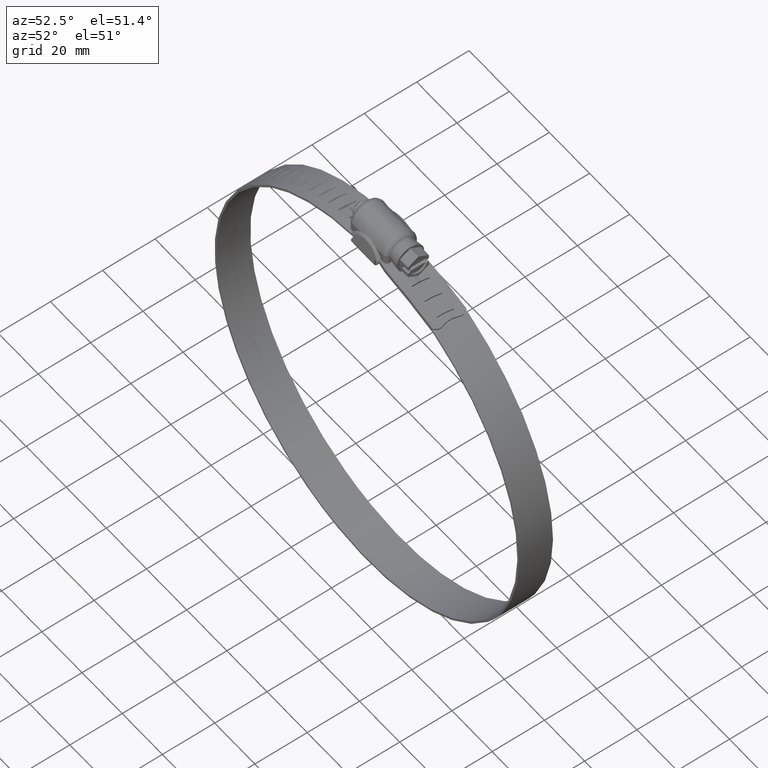
[diagram: clean part render]
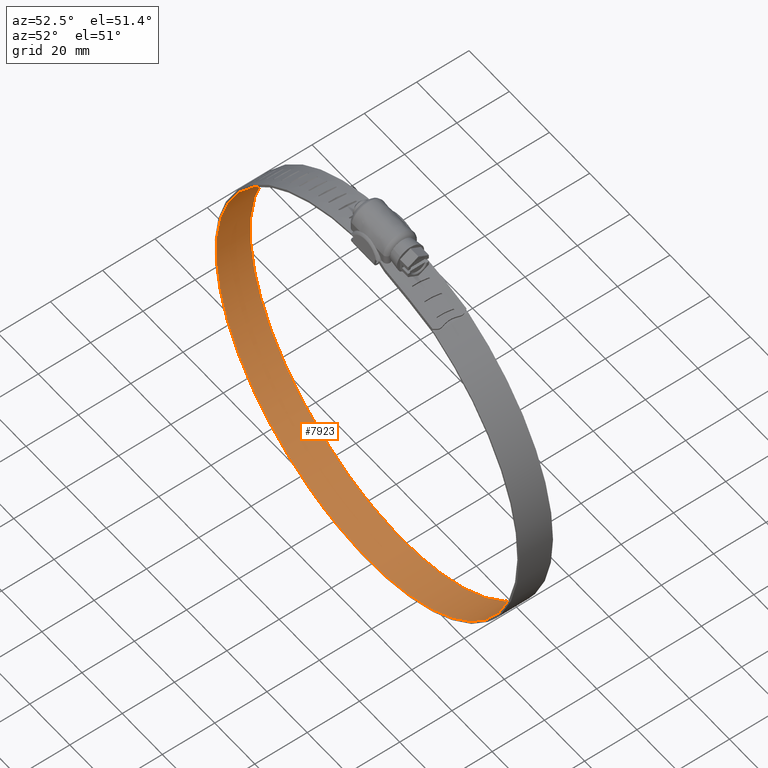
[diagram: same view with one face highlighted and labeled with its STEP entity id]
A machine part, auxiliary view. The second image highlights one B-rep face of the part: STEP entity #7923.
In plain terms, the highlighted face is a freeform B-spline surface patch.
Its self-contained STEP definition (entity closure, byte-faithful):
#3766=CARTESIAN_POINT('',(-7.541215459134650,-2.789310000000000,11.205408976076701));
#3767=VERTEX_POINT('',#3766);
#3773=CARTESIAN_POINT('',(-7.839636320592629,-3.089309903259875,11.174646987018230));
#3774=VERTEX_POINT('',#3773);
#3775=CARTESIAN_POINT('',(-7.839636320592629,-3.089309903259875,11.174646987018230));
#3776=CARTESIAN_POINT('',(-7.800596161233879,-3.089341385501940,11.178750336410300));
#3777=CARTESIAN_POINT('',(-7.712702211565038,-3.071754579743828,11.187952995240330));
#3778=CARTESIAN_POINT('',(-7.583309750568905,-2.975451491127461,11.201359022950520));
#3779=CARTESIAN_POINT('',(-7.540860984615506,-2.858121426801662,11.205584614341010));
#3780=CARTESIAN_POINT('',(-7.541215459134650,-2.789310000000000,11.205408976076701));
#3781=B_SPLINE_CURVE_WITH_KNOTS('',3,(#3775,#3776,#3777,#3778,#3779,#3780),.UNSPECIFIED.,.F.,.U.,(4,1,1,4),(0.000001322643963,0.117858497061739,0.265160526396338,0.471429995985655),.UNSPECIFIED.);
#3782=EDGE_CURVE('',#3774,#3767,#3781,.T.);
#3784=CARTESIAN_POINT('',(-8.137928596355629,-2.789309999999935,11.142691898116260));
#3785=VERTEX_POINT('',#3784);
#3786=CARTESIAN_POINT('',(-8.137928596355629,-2.789309999999935,11.142691898116260));
#3787=CARTESIAN_POINT('',(-8.137966491554355,-2.828568622220602,11.142766865236331));
#3788=CARTESIAN_POINT('',(-8.120509519455309,-2.916947182015715,11.144779398427341));
#3789=CARTESIAN_POINT('',(-8.024733351970824,-3.047010800020990,11.155107440472189));
#3790=CARTESIAN_POINT('',(-7.908078855364414,-3.089684844235478,11.167454140733330));
#3791=CARTESIAN_POINT('',(-7.839636320592629,-3.089309903259875,11.174646987018230));
#3792=B_SPLINE_CURVE_WITH_KNOTS('',3,(#3786,#3787,#3788,#3789,#3790,#3791),.UNSPECIFIED.,.F.,.U.,(4,1,1,4),(0.000001370979725,0.117858081693338,0.265159516042607,0.471428209669096),.UNSPECIFIED.);
#3793=EDGE_CURVE('',#3785,#3774,#3792,.T.);
#3815=CARTESIAN_POINT('',(-6.950547764438730,2.848224000000000,11.262743070072320));
#3816=VERTEX_POINT('',#3815);
#3822=CARTESIAN_POINT('',(-7.541215459134650,-2.789310000000000,11.205408976076701));
#3823=CARTESIAN_POINT('',(-6.950547764438730,2.848224000000000,11.262743070072320));
#3824=QUASI_UNIFORM_CURVE('',1,(#3822,#3823),.UNSPECIFIED.,.F.,.U.);
#3825=EDGE_CURVE('',#3767,#3816,#3824,.T.);
#3871=CARTESIAN_POINT('',(-7.541215459134670,2.910690000000000,11.205408976077020));
#3872=VERTEX_POINT('',#3871);
#3878=CARTESIAN_POINT('',(-7.211408344984342,3.209041419436076,11.238003884376610));
#3879=VERTEX_POINT('',#3878);
#3880=CARTESIAN_POINT('',(-7.211408344984342,3.209041419436076,11.238003884376610));
#3881=CARTESIAN_POINT('',(-7.289382076425358,3.217960767493032,11.230448816343589));
#3882=CARTESIAN_POINT('',(-7.401939430140092,3.183327834760391,11.219452514528911));
#3883=CARTESIAN_POINT('',(-7.514917232849932,3.057079906882419,11.208241169374730));
#3884=CARTESIAN_POINT('',(-7.541400184540487,2.968345701981637,11.205500674509210));
#3885=CARTESIAN_POINT('',(-7.541215459134670,2.910690000000000,11.205408976077020));
#3886=B_SPLINE_CURVE_WITH_KNOTS('',3,(#3880,#3881,#3882,#3883,#3884,#3885),.UNSPECIFIED.,.F.,.U.,(4,1,1,4),(0.000000720014016,0.235715293834085,0.329929368136237,0.502763866401422),.UNSPECIFIED.);
#3887=EDGE_CURVE('',#3879,#3872,#3886,.T.);
#3889=CARTESIAN_POINT('',(-6.950547764438730,2.848224000000000,11.262743070072320));
#3890=CARTESIAN_POINT('',(-6.940701405563275,2.894323170586967,11.263788478813311));
#3891=CARTESIAN_POINT('',(-6.943247398363344,2.985733334373491,11.263711285290670));
#3892=CARTESIAN_POINT('',(-7.020458237592629,3.138610650169698,11.256474978580080));
#3893=CARTESIAN_POINT('',(-7.133354343159396,3.201394111492754,11.245593762763759));
#3894=CARTESIAN_POINT('',(-7.211408344984342,3.209041419436076,11.238003884376610));
#3895=B_SPLINE_CURVE_WITH_KNOTS('',3,(#3889,#3890,#3891,#3892,#3893,#3894),.UNSPECIFIED.,.F.,.U.,(4,1,1,4),(0.000000720802624,0.141409072052973,0.267049711515755,0.502764654305422),.UNSPECIFIED.);
#3896=EDGE_CURVE('',#3816,#3879,#3895,.T.);
#3914=CARTESIAN_POINT('',(-8.105942585869782,0.213522000000012,11.146176233530261));
#3915=VERTEX_POINT('',#3914);
#3921=CARTESIAN_POINT('',(-7.541215459134670,2.910690000000000,11.205408976077020));
#3922=CARTESIAN_POINT('',(-8.105942585869782,0.213522000000012,11.146176233530261));
#3923=QUASI_UNIFORM_CURVE('',1,(#3921,#3922),.UNSPECIFIED.,.F.,.U.);
#3924=EDGE_CURVE('',#3872,#3915,#3923,.T.);
#3951=CARTESIAN_POINT('',(-8.137928596355769,-0.095493000000004,11.142691898116439));
#3952=VERTEX_POINT('',#3951);
#3958=CARTESIAN_POINT('',(-8.105942585869782,0.213522000000012,11.146176233530261));
#3959=CARTESIAN_POINT('',(-8.137928596355769,-0.095493000000004,11.142691898116439));
#3960=QUASI_UNIFORM_CURVE('',1,(#3958,#3959),.UNSPECIFIED.,.F.,.U.);
#3961=EDGE_CURVE('',#3915,#3952,#3960,.T.);
#3978=CARTESIAN_POINT('',(-8.137928596355769,-0.095493000000004,11.142691898116439));
#3979=CARTESIAN_POINT('',(-8.137928596355629,-2.789309999999935,11.142691898116260));
#3980=QUASI_UNIFORM_CURVE('',1,(#3978,#3979),.UNSPECIFIED.,.F.,.U.);
#3981=EDGE_CURVE('',#3952,#3785,#3980,.T.);
#4001=CARTESIAN_POINT('',(-13.318951461600079,-2.789309999999935,10.393401135600300));
#4002=VERTEX_POINT('',#4001);
#4008=CARTESIAN_POINT('',(-13.318951461600200,-0.095493000000004,10.393401135600399));
#4009=VERTEX_POINT('',#4008);
#4010=CARTESIAN_POINT('',(-13.318951461600200,-0.095493000000004,10.393401135600399));
#4011=CARTESIAN_POINT('',(-13.318951461600079,-2.789309999999935,10.393401135600300));
#4012=QUASI_UNIFORM_CURVE('',1,(#4010,#4011),.UNSPECIFIED.,.F.,.U.);
#4013=EDGE_CURVE('',#4009,#4002,#4012,.T.);
#4045=CARTESIAN_POINT('',(-13.287286422379941,0.213522000000012,10.399108214648979));
#4046=VERTEX_POINT('',#4045);
#4047=CARTESIAN_POINT('',(-13.287286422379941,0.213522000000012,10.399108214648979));
#4048=CARTESIAN_POINT('',(-13.318951461600200,-0.095493000000004,10.393401135600399));
#4049=QUASI_UNIFORM_CURVE('',1,(#4047,#4048),.UNSPECIFIED.,.F.,.U.);
#4050=EDGE_CURVE('',#4046,#4009,#4049,.T.);
#4073=CARTESIAN_POINT('',(-12.728066809792701,2.910690000000000,10.497590042200301));
#4074=VERTEX_POINT('',#4073);
#4075=CARTESIAN_POINT('',(-12.728066809792701,2.910690000000000,10.497590042200301));
#4076=CARTESIAN_POINT('',(-13.287286422379941,0.213522000000012,10.399108214648979));
#4077=QUASI_UNIFORM_CURVE('',1,(#4075,#4076),.UNSPECIFIED.,.F.,.U.);
#4078=EDGE_CURVE('',#4074,#4046,#4077,.T.);
#4129=CARTESIAN_POINT('',(-12.401336795061480,3.209041419436078,10.553111732240669));
#4130=VERTEX_POINT('',#4129);
#4131=CARTESIAN_POINT('',(-12.401336795061480,3.209041419436078,10.553111732240669));
#4132=CARTESIAN_POINT('',(-12.478589990657120,3.217957180530700,10.540136490762400));
#4133=CARTESIAN_POINT('',(-12.590115216470910,3.183333340154731,10.521313855058420));
#4134=CARTESIAN_POINT('',(-12.702025348157971,3.057075552525930,10.502250616995500));
#4135=CARTESIAN_POINT('',(-12.728260615624640,2.968348448098254,10.497668109690251));
#4136=CARTESIAN_POINT('',(-12.728066809792701,2.910690000000000,10.497590042200301));
#4137=B_SPLINE_CURVE_WITH_KNOTS('',3,(#4131,#4132,#4133,#4134,#4135,#4136),.UNSPECIFIED.,.F.,.U.,(4,1,1,4),(0.000000720013921,0.235715293834086,0.329929368136239,0.502763866401390),.UNSPECIFIED.);
#4138=EDGE_CURVE('',#4130,#4074,#4137,.T.);
#4140=CARTESIAN_POINT('',(-12.142837376136701,2.848224000000000,10.595987368761200));
#4141=VERTEX_POINT('',#4140);
#4142=CARTESIAN_POINT('',(-12.142837376136701,2.848224000000000,10.595987368761200));
#4143=CARTESIAN_POINT('',(-12.133094438035670,2.894322433629411,10.597715979655661));
#4144=CARTESIAN_POINT('',(-12.135608308799091,2.985743169875460,10.597464854777650));
#4145=CARTESIAN_POINT('',(-12.212180486234660,3.138554399970458,10.584850962428879));
#4146=CARTESIAN_POINT('',(-12.323968208141229,3.201457515346409,10.566133770094400));
#4147=CARTESIAN_POINT('',(-12.401336795061480,3.209041419436078,10.553111732240669));
#4148=B_SPLINE_CURVE_WITH_KNOTS('',3,(#4142,#4143,#4144,#4145,#4146,#4147),.UNSPECIFIED.,.F.,.U.,(4,1,1,4),(0.000000720803168,0.141409072053326,0.267049711515952,0.502764654305435),.UNSPECIFIED.);
#4149=EDGE_CURVE('',#4141,#4130,#4148,.T.);
#4172=CARTESIAN_POINT('',(-12.728066809792720,-2.789310000000000,10.497590042200301));
#4173=VERTEX_POINT('',#4172);
#4174=CARTESIAN_POINT('',(-12.728066809792720,-2.789310000000000,10.497590042200301));
#4175=CARTESIAN_POINT('',(-12.142837376136701,2.848224000000000,10.595987368761200));
#4176=QUASI_UNIFORM_CURVE('',1,(#4174,#4175),.UNSPECIFIED.,.F.,.U.);
#4177=EDGE_CURVE('',#4173,#4141,#4176,.T.);
#4226=CARTESIAN_POINT('',(-13.023614885148341,-3.089309903259875,10.446086200814181));
#4227=VERTEX_POINT('',#4226);
#4228=CARTESIAN_POINT('',(-13.023614885148341,-3.089309903259875,10.446086200814181));
#4229=CARTESIAN_POINT('',(-12.984948180435550,-3.089337902773413,10.452904240959571));
#4230=CARTESIAN_POINT('',(-12.897915144840360,-3.071768613794994,10.468214832522410));
#4231=CARTESIAN_POINT('',(-12.769785822944041,-2.975436162375130,10.490611851068460));
#4232=CARTESIAN_POINT('',(-12.727721865733569,-2.858127743574259,10.497790624459171));
#4233=CARTESIAN_POINT('',(-12.728066809792720,-2.789310000000000,10.497590042200301));
#4234=B_SPLINE_CURVE_WITH_KNOTS('',3,(#4228,#4229,#4230,#4231,#4232,#4233),.UNSPECIFIED.,.F.,.U.,(4,1,1,4),(0.000001322643866,0.117858497061622,0.265160526396180,0.471429995985445),.UNSPECIFIED.);
#4235=EDGE_CURVE('',#4227,#4173,#4234,.T.);
#4237=CARTESIAN_POINT('',(-13.318951461600079,-2.789309999999935,10.393401135600300));
#4238=CARTESIAN_POINT('',(-13.318993733652770,-2.828572680084152,10.393473418967140));
#4239=CARTESIAN_POINT('',(-13.301720953624560,-2.916942514209522,10.396698543028981));
#4240=CARTESIAN_POINT('',(-13.206899592012100,-3.047014210708190,10.413682265079171));
#4241=CARTESIAN_POINT('',(-13.091386995892311,-3.089682745622736,10.434136906317759));
#4242=CARTESIAN_POINT('',(-13.023614885148341,-3.089309903259875,10.446086200814181));
#4243=B_SPLINE_CURVE_WITH_KNOTS('',3,(#4237,#4238,#4239,#4240,#4241,#4242),.UNSPECIFIED.,.F.,.U.,(4,1,1,4),(0.000001370979748,0.117858081693403,0.265159516042726,0.471428209669291),.UNSPECIFIED.);
#4244=EDGE_CURVE('',#4002,#4227,#4243,.T.);
#4264=CARTESIAN_POINT('',(-18.435085734139900,-2.789309999999935,9.284525722255481));
#4265=VERTEX_POINT('',#4264);
#4271=CARTESIAN_POINT('',(-18.435085734139999,-0.095493000000004,9.284525722255580));
#4272=VERTEX_POINT('',#4271);
#4273=CARTESIAN_POINT('',(-18.435085734139999,-0.095493000000004,9.284525722255580));
#4274=CARTESIAN_POINT('',(-18.435085734139900,-2.789309999999935,9.284525722255481));
#4275=QUASI_UNIFORM_CURVE('',1,(#4273,#4274),.UNSPECIFIED.,.F.,.U.);
#4276=EDGE_CURVE('',#4272,#4265,#4275,.T.);
#4308=CARTESIAN_POINT('',(-18.403895935073699,0.213522000000012,9.292427740623600));
#4309=VERTEX_POINT('',#4308);
#4310=CARTESIAN_POINT('',(-18.403895935073699,0.213522000000012,9.292427740623600));
#4311=CARTESIAN_POINT('',(-18.435085734139999,-0.095493000000004,9.284525722255580));
#4312=QUASI_UNIFORM_CURVE('',1,(#4310,#4311),.UNSPECIFIED.,.F.,.U.);
#4313=EDGE_CURVE('',#4309,#4272,#4312,.T.);
#4336=CARTESIAN_POINT('',(-17.852908298374199,2.910690000000000,9.429678859615208));
#4337=VERTEX_POINT('',#4336);
#4338=CARTESIAN_POINT('',(-17.852908298374199,2.910690000000000,9.429678859615208));
#4339=CARTESIAN_POINT('',(-18.403895935073699,0.213522000000012,9.292427740623600));
#4340=QUASI_UNIFORM_CURVE('',1,(#4338,#4339),.UNSPECIFIED.,.F.,.U.);
#4341=EDGE_CURVE('',#4337,#4309,#4340,.T.);
#4392=CARTESIAN_POINT('',(-17.530847178851172,3.209041419436078,9.507856835303057));
#4393=VERTEX_POINT('',#4392);
#4394=CARTESIAN_POINT('',(-17.530847178851172,3.209041419436078,9.507856835303057));
#4395=CARTESIAN_POINT('',(-17.607007387991029,3.217957784572757,9.489524217910699));
#4396=CARTESIAN_POINT('',(-17.716947897966030,3.183333346305787,9.462967836465756));
#4397=CARTESIAN_POINT('',(-17.827255542446942,3.057075144133949,9.436144601528781));
#4398=CARTESIAN_POINT('',(-17.853106645041080,2.968350237143543,9.429743325481125));
#4399=CARTESIAN_POINT('',(-17.852908298374199,2.910690000000000,9.429678859615208));
#4400=B_SPLINE_CURVE_WITH_KNOTS('',3,(#4394,#4395,#4396,#4397,#4398,#4399),.UNSPECIFIED.,.F.,.U.,(4,1,1,4),(0.000000720014343,0.235715293834044,0.329929368136128,0.502763866401204),.UNSPECIFIED.);
#4401=EDGE_CURVE('',#4393,#4337,#4400,.T.);
#4403=CARTESIAN_POINT('',(-17.275968304731851,2.848224000000000,9.568660036857160));
#4404=VERTEX_POINT('',#4403);
#4405=CARTESIAN_POINT('',(-17.275968304731851,2.848224000000000,9.568660036857160));
#4406=CARTESIAN_POINT('',(-17.264156571789940,2.904580496150637,9.571617647470452));
#4407=CARTESIAN_POINT('',(-17.271550891262390,2.996912560344638,9.570010328682564));
#4408=CARTESIAN_POINT('',(-17.354008940588180,3.144033004789607,9.550397514533218));
#4409=CARTESIAN_POINT('',(-17.454553775700319,3.201454076026503,9.526249329642738));
#4410=CARTESIAN_POINT('',(-17.530847178851172,3.209041419436078,9.507856835303057));
#4411=B_SPLINE_CURVE_WITH_KNOTS('',3,(#4405,#4406,#4407,#4408,#4409,#4410),.UNSPECIFIED.,.F.,.U.,(4,1,1,4),(0.000000720802922,0.172835490398365,0.267049711515960,0.502764654305512),.UNSPECIFIED.);
#4412=EDGE_CURVE('',#4404,#4393,#4411,.T.);
#4435=CARTESIAN_POINT('',(-17.852908298374249,-2.789310000000000,9.429678859615208));
#4436=VERTEX_POINT('',#4435);
#4437=CARTESIAN_POINT('',(-17.852908298374249,-2.789310000000000,9.429678859615208));
#4438=CARTESIAN_POINT('',(-17.275968304731851,2.848224000000000,9.568660036857160));
#4439=QUASI_UNIFORM_CURVE('',1,(#4437,#4438),.UNSPECIFIED.,.F.,.U.);
#4440=EDGE_CURVE('',#4436,#4404,#4439,.T.);
#4489=CARTESIAN_POINT('',(-18.144143707113450,-3.089309903259874,9.357684087439296));
#4490=VERTEX_POINT('',#4489);
#4491=CARTESIAN_POINT('',(-18.144143707113450,-3.089309903259874,9.357684087439296));
#4492=CARTESIAN_POINT('',(-18.106061873993699,-3.089346953764750,9.367179031191606));
#4493=CARTESIAN_POINT('',(-18.020281594671260,-3.071759321445942,9.388530204630017));
#4494=CARTESIAN_POINT('',(-17.894046786682608,-2.975441000173055,9.419805542378542));
#4495=CARTESIAN_POINT('',(-17.852575323246850,-2.858127826574574,9.429903729405391));
#4496=CARTESIAN_POINT('',(-17.852908298374249,-2.789310000000000,9.429678859615208));
#4497=B_SPLINE_CURVE_WITH_KNOTS('',3,(#4491,#4492,#4493,#4494,#4495,#4496),.UNSPECIFIED.,.F.,.U.,(4,1,1,4),(0.000001322643928,0.117858497061704,0.265160526396304,0.471429995985653),.UNSPECIFIED.);
#4498=EDGE_CURVE('',#4490,#4436,#4497,.T.);
#4500=CARTESIAN_POINT('',(-18.435085734139900,-2.789309999999935,9.284525722255481));
#4501=CARTESIAN_POINT('',(-18.435140968705419,-2.828557555247719,9.284592849196915));
#4502=CARTESIAN_POINT('',(-18.418119338770211,-2.916954347734493,9.289019024831983));
#4503=CARTESIAN_POINT('',(-18.324727433425821,-3.047006109812119,9.312572309453167));
#4504=CARTESIAN_POINT('',(-18.210915149170219,-3.089685499794254,9.341036871313030));
#4505=CARTESIAN_POINT('',(-18.144143707113450,-3.089309903259874,9.357684087439296));
#4506=B_SPLINE_CURVE_WITH_KNOTS('',3,(#4500,#4501,#4502,#4503,#4504,#4505),.UNSPECIFIED.,.F.,.U.,(4,1,1,4),(0.000001370979791,0.117858081693386,0.265159516042640,0.471428209669126),.UNSPECIFIED.);
#4507=EDGE_CURVE('',#4265,#4490,#4506,.T.);
#4527=CARTESIAN_POINT('',(-23.461406122071299,-2.789309999999935,7.821467987631850));
#4528=VERTEX_POINT('',#4527);
#4534=CARTESIAN_POINT('',(-23.461406122071502,-0.095493000000004,7.821467987632060));
#4535=VERTEX_POINT('',#4534);
#4536=CARTESIAN_POINT('',(-23.461406122071502,-0.095493000000004,7.821467987632060));
#4537=CARTESIAN_POINT('',(-23.461406122071299,-2.789309999999935,7.821467987631850));
#4538=QUASI_UNIFORM_CURVE('',1,(#4536,#4537),.UNSPECIFIED.,.F.,.U.);
#4539=EDGE_CURVE('',#4535,#4528,#4538,.T.);
#4571=CARTESIAN_POINT('',(-23.430843516724849,0.213522000000012,7.831526447479920));
#4572=VERTEX_POINT('',#4571);
#4573=CARTESIAN_POINT('',(-23.430843516724849,0.213522000000012,7.831526447479920));
#4574=CARTESIAN_POINT('',(-23.461406122071502,-0.095493000000004,7.821467987632060));
#4575=QUASI_UNIFORM_CURVE('',1,(#4573,#4574),.UNSPECIFIED.,.F.,.U.);
#4576=EDGE_CURVE('',#4572,#4535,#4575,.T.);
#4599=CARTESIAN_POINT('',(-22.890772212294301,2.910690000000000,8.006878184257049));
#4600=VERTEX_POINT('',#4599);
#4601=CARTESIAN_POINT('',(-22.890772212294301,2.910690000000000,8.006878184257049));
#4602=CARTESIAN_POINT('',(-23.430843516724849,0.213522000000012,7.831526447479920));
#4603=QUASI_UNIFORM_CURVE('',1,(#4601,#4602),.UNSPECIFIED.,.F.,.U.);
#4604=EDGE_CURVE('',#4600,#4572,#4603,.T.);
#4655=CARTESIAN_POINT('',(-22.574949037379358,3.209041419436079,8.107331570353233));
#4656=VERTEX_POINT('',#4655);
#4657=CARTESIAN_POINT('',(-22.574949037379358,3.209041419436079,8.107331570353233));
#4658=CARTESIAN_POINT('',(-22.649626997898551,3.217959484488304,8.083736608250366));
#4659=CARTESIAN_POINT('',(-22.767793273549319,3.180034229589281,8.046297949896291));
#4660=CARTESIAN_POINT('',(-22.870427119638691,3.046730981959931,8.013581211364393));
#4661=CARTESIAN_POINT('',(-22.890874627958979,2.957837768502448,8.006939391308741));
#4662=CARTESIAN_POINT('',(-22.890772212294301,2.910690000000000,8.006878184257049));
#4663=B_SPLINE_CURVE_WITH_KNOTS('',3,(#4657,#4658,#4659,#4660,#4661,#4662),.UNSPECIFIED.,.F.,.U.,(4,1,1,4),(0.000000720014222,0.235715293834490,0.361355737188725,0.502763866401920),.UNSPECIFIED.);
#4664=EDGE_CURVE('',#4656,#4600,#4663,.T.);
#4666=CARTESIAN_POINT('',(-22.324932452320549,2.848224000000000,8.185766109854480));
#4667=VERTEX_POINT('',#4666);
#4668=CARTESIAN_POINT('',(-22.324932452320549,2.848224000000000,8.185766109854480));
#4669=CARTESIAN_POINT('',(-22.311077012865791,2.914853177246562,8.190281817059267));
#4670=CARTESIAN_POINT('',(-22.326244812940740,3.030051512125338,8.185705471027308));
#4671=CARTESIAN_POINT('',(-22.429092439028519,3.163232935721314,8.153410640801940));
#4672=CARTESIAN_POINT('',(-22.520280316896919,3.203177151576817,8.124624590648566));
#4673=CARTESIAN_POINT('',(-22.574949037379358,3.209041419436079,8.107331570353233));
#4674=B_SPLINE_CURVE_WITH_KNOTS('',3,(#4668,#4669,#4670,#4671,#4672,#4673),.UNSPECIFIED.,.F.,.U.,(4,1,1,4),(0.000000720802890,0.204262065478375,0.329929884709285,0.502764654305149),.UNSPECIFIED.);
#4675=EDGE_CURVE('',#4667,#4656,#4674,.T.);
#4698=CARTESIAN_POINT('',(-22.890772212294301,-2.789310000000000,8.006878184257049));
#4699=VERTEX_POINT('',#4698);
#4700=CARTESIAN_POINT('',(-22.890772212294301,-2.789310000000000,8.006878184257049));
#4701=CARTESIAN_POINT('',(-22.324932452320549,2.848224000000000,8.185766109854480));
#4702=QUASI_UNIFORM_CURVE('',1,(#4700,#4701),.UNSPECIFIED.,.F.,.U.);
#4703=EDGE_CURVE('',#4699,#4667,#4702,.T.);
#4752=CARTESIAN_POINT('',(-23.176276084779619,-3.089309903259875,7.914743232584502));
#4753=VERTEX_POINT('',#4752);
#4754=CARTESIAN_POINT('',(-23.176276084779619,-3.089309903259875,7.914743232584502));
#4755=CARTESIAN_POINT('',(-23.110831320736999,-3.089681691253349,7.936008307257779));
#4756=CARTESIAN_POINT('',(-22.999218351972370,-3.047022470504310,7.972183849632836));
#4757=CARTESIAN_POINT('',(-22.907548280312721,-2.916939415485701,8.001695705467171));
#4758=CARTESIAN_POINT('',(-22.890766846403910,-2.828565150385168,8.006962478697464));
#4759=CARTESIAN_POINT('',(-22.890772212294301,-2.789310000000000,8.006878184257049));
#4760=B_SPLINE_CURVE_WITH_KNOTS('',3,(#4754,#4755,#4756,#4757,#4758,#4759),.UNSPECIFIED.,.F.,.U.,(4,1,1,4),(0.000001322643830,0.206270776121722,0.353572811271703,0.471429995985319),.UNSPECIFIED.);
#4761=EDGE_CURVE('',#4753,#4699,#4760,.T.);
#4763=CARTESIAN_POINT('',(-23.461406122071299,-2.789309999999935,7.821467987631850));
#4764=CARTESIAN_POINT('',(-23.461807838697581,-2.858128454319473,7.821482182596216));
#4765=CARTESIAN_POINT('',(-23.421293168633650,-2.975436341145515,7.834892887545421));
#4766=CARTESIAN_POINT('',(-23.297655674922311,-3.071765927313989,7.875267719171807));
#4767=CARTESIAN_POINT('',(-23.213613247433649,-3.089338236827685,7.902611712606185));
#4768=CARTESIAN_POINT('',(-23.176276084779619,-3.089309903259875,7.914743232584502));
#4769=B_SPLINE_CURVE_WITH_KNOTS('',3,(#4763,#4764,#4765,#4766,#4767,#4768),.UNSPECIFIED.,.F.,.U.,(4,1,1,4),(0.000001370979791,0.206270007596906,0.353571462530191,0.471428209669382),.UNSPECIFIED.);
#4770=EDGE_CURVE('',#4528,#4753,#4769,.T.);
#4790=CARTESIAN_POINT('',(-28.373424897708301,-2.789309999999935,6.011355801946420));
#4791=VERTEX_POINT('',#4790);
#4797=CARTESIAN_POINT('',(-28.373424897708450,-0.095493000000004,6.011355801946450));
#4798=VERTEX_POINT('',#4797);
#4799=CARTESIAN_POINT('',(-28.373424897708450,-0.095493000000004,6.011355801946450));
#4800=CARTESIAN_POINT('',(-28.373424897708301,-2.789309999999935,6.011355801946420));
#4801=QUASI_UNIFORM_CURVE('',1,(#4799,#4800),.UNSPECIFIED.,.F.,.U.);
#4802=EDGE_CURVE('',#4798,#4791,#4801,.T.);
#4834=CARTESIAN_POINT('',(-28.343638384022650,0.213522000000012,6.023521699469140));
#4835=VERTEX_POINT('',#4834);
#4836=CARTESIAN_POINT('',(-28.343638384022650,0.213522000000012,6.023521699469140));
#4837=CARTESIAN_POINT('',(-28.373424897708450,-0.095493000000004,6.011355801946450));
#4838=QUASI_UNIFORM_CURVE('',1,(#4836,#4837),.UNSPECIFIED.,.F.,.U.);
#4839=EDGE_CURVE('',#4835,#4798,#4838,.T.);
#4862=CARTESIAN_POINT('',(-27.817114584968252,2.910690000000000,6.236119757996209));
#4863=VERTEX_POINT('',#4862);
#4864=CARTESIAN_POINT('',(-27.817114584968252,2.910690000000000,6.236119757996209));
#4865=CARTESIAN_POINT('',(-28.343638384022650,0.213522000000012,6.023521699469140));
#4866=QUASI_UNIFORM_CURVE('',1,(#4864,#4865),.UNSPECIFIED.,.F.,.U.);
#4867=EDGE_CURVE('',#4863,#4835,#4866,.T.);
#4918=CARTESIAN_POINT('',(-27.509068013424098,3.209041419436074,6.358359155701320));
#4919=VERTEX_POINT('',#4918);
#4920=CARTESIAN_POINT('',(-27.509068013424098,3.209041419436074,6.358359155701320));
#4921=CARTESIAN_POINT('',(-27.552672674469729,3.214055244964371,6.341152043670064));
#4922=CARTESIAN_POINT('',(-27.636981501539200,3.201980601733379,6.307838105515911));
#4923=CARTESIAN_POINT('',(-27.770773332317582,3.108839726419348,6.254820827331714));
#4924=CARTESIAN_POINT('',(-27.817730161561180,2.989482545247804,6.236037030665109));
#4925=CARTESIAN_POINT('',(-27.817114584968252,2.910690000000000,6.236119757996209));
#4926=B_SPLINE_CURVE_WITH_KNOTS('',3,(#4920,#4921,#4922,#4923,#4924,#4925),.UNSPECIFIED.,.F.,.U.,(4,1,1,4),(0.000000720014804,0.141408850564615,0.267049292481701,0.502763866401720),.UNSPECIFIED.);
#4927=EDGE_CURVE('',#4919,#4863,#4926,.T.);
#4929=CARTESIAN_POINT('',(-27.265131773095899,2.848224000000000,6.454042907957630));
#4930=VERTEX_POINT('',#4929);
#4931=CARTESIAN_POINT('',(-27.265131773095899,2.848224000000000,6.454042907957630));
#4932=CARTESIAN_POINT('',(-27.253847021873920,2.904581657957551,6.458615450739475));
#4933=CARTESIAN_POINT('',(-27.260945077348129,2.996912198043922,6.455994920917276));
#4934=CARTESIAN_POINT('',(-27.339871455232259,3.144033341579925,6.425096885810619));
#4935=CARTESIAN_POINT('',(-27.436076621616952,3.201454551028742,6.387190729500341));
#4936=CARTESIAN_POINT('',(-27.509068013424098,3.209041419436074,6.358359155701320));
#4937=B_SPLINE_CURVE_WITH_KNOTS('',3,(#4931,#4932,#4933,#4934,#4935,#4936),.UNSPECIFIED.,.F.,.U.,(4,1,1,4),(0.000000720802471,0.172835490397996,0.267049711515634,0.502764654305220),.UNSPECIFIED.);
#4938=EDGE_CURVE('',#4930,#4919,#4937,.T.);
#4961=CARTESIAN_POINT('',(-27.817114584968198,-2.789310000000000,6.236119757995979));
#4962=VERTEX_POINT('',#4961);
#4963=CARTESIAN_POINT('',(-27.817114584968198,-2.789310000000000,6.236119757995979));
#4964=CARTESIAN_POINT('',(-27.265131773095899,2.848224000000000,6.454042907957630));
#4965=QUASI_UNIFORM_CURVE('',1,(#4963,#4964),.UNSPECIFIED.,.F.,.U.);
#4966=EDGE_CURVE('',#4962,#4930,#4965,.T.);
#5015=CARTESIAN_POINT('',(-28.095495975032598,-3.089309903259875,6.124293499050288));
#5016=VERTEX_POINT('',#5015);
#5017=CARTESIAN_POINT('',(-28.095495975032598,-3.089309903259875,6.124293499050288));
#5018=CARTESIAN_POINT('',(-28.031689536056351,-3.089686267611718,6.150073785595803));
#5019=CARTESIAN_POINT('',(-27.922890263889489,-3.047010713223930,6.193939490342667));
#5020=CARTESIAN_POINT('',(-27.833475145080509,-2.916946555690807,6.229784984706117));
#5021=CARTESIAN_POINT('',(-27.817117985120682,-2.828569169475788,6.236203069352022));
#5022=CARTESIAN_POINT('',(-27.817114584968198,-2.789310000000000,6.236119757995979));
#5023=B_SPLINE_CURVE_WITH_KNOTS('',3,(#5017,#5018,#5019,#5020,#5021,#5022),.UNSPECIFIED.,.F.,.U.,(4,1,1,4),(0.000001322643964,0.206270776121864,0.353572811271865,0.471429995985480),.UNSPECIFIED.);
#5024=EDGE_CURVE('',#5016,#4962,#5023,.T.);
#5026=CARTESIAN_POINT('',(-28.373424897708301,-2.789309999999935,6.011355801946420));
#5027=CARTESIAN_POINT('',(-28.373823565353071,-2.858118597654285,6.011343155302701));
#5028=CARTESIAN_POINT('',(-28.334356304571379,-2.975455664356903,6.027542068989246));
#5029=CARTESIAN_POINT('',(-28.213818594474152,-3.071751504342831,6.076450182795949));
#5030=CARTESIAN_POINT('',(-28.131892669991419,-3.089341190086615,6.109588347226856));
#5031=CARTESIAN_POINT('',(-28.095495975032598,-3.089309903259875,6.124293499050288));
#5032=B_SPLINE_CURVE_WITH_KNOTS('',3,(#5026,#5027,#5028,#5029,#5030,#5031),.UNSPECIFIED.,.F.,.U.,(4,1,1,4),(0.000001370979679,0.206270007596826,0.353571462530101,0.471428209669277),.UNSPECIFIED.);
#5033=EDGE_CURVE('',#4791,#5016,#5032,.T.);
#5053=CARTESIAN_POINT('',(-33.147211199330350,-2.789309999999935,3.863007849816055));
#5054=VERTEX_POINT('',#5053);
#5060=CARTESIAN_POINT('',(-33.147211199330549,-0.095493000000004,3.863007849816190));
#5061=VERTEX_POINT('',#5060);
#5062=CARTESIAN_POINT('',(-33.147211199330549,-0.095493000000004,3.863007849816190));
#5063=CARTESIAN_POINT('',(-33.147211199330350,-2.789309999999935,3.863007849816055));
#5064=QUASI_UNIFORM_CURVE('',1,(#5062,#5063),.UNSPECIFIED.,.F.,.U.);
#5065=EDGE_CURVE('',#5061,#5054,#5064,.T.);
#5097=CARTESIAN_POINT('',(-33.118345894206193,0.213522000000012,3.877221913983915));
#5098=VERTEX_POINT('',#5097);
#5099=CARTESIAN_POINT('',(-33.118345894206193,0.213522000000012,3.877221913983915));
#5100=CARTESIAN_POINT('',(-33.147211199330549,-0.095493000000004,3.863007849816190));
#5101=QUASI_UNIFORM_CURVE('',1,(#5099,#5100),.UNSPECIFIED.,.F.,.U.);
#5102=EDGE_CURVE('',#5098,#5061,#5101,.T.);
#5125=CARTESIAN_POINT('',(-32.607934771550852,2.910690000000000,4.126030537889405));
#5126=VERTEX_POINT('',#5125);
#5127=CARTESIAN_POINT('',(-32.607934771550852,2.910690000000000,4.126030537889405));
#5128=CARTESIAN_POINT('',(-33.118345894206193,0.213522000000012,3.877221913983915));
#5129=QUASI_UNIFORM_CURVE('',1,(#5127,#5128),.UNSPECIFIED.,.F.,.U.);
#5130=EDGE_CURVE('',#5126,#5098,#5129,.T.);
#5181=CARTESIAN_POINT('',(-32.309165575309422,3.209041419436079,4.269460409145523));
#5182=VERTEX_POINT('',#5181);
#5183=CARTESIAN_POINT('',(-32.309165575309422,3.209041419436079,4.269460409145523));
#5184=CARTESIAN_POINT('',(-32.379849017690780,3.217957274317505,4.235694243273695));
#5185=CARTESIAN_POINT('',(-32.481866762133741,3.183333544248700,4.186859750168646));
#5186=CARTESIAN_POINT('',(-32.584187287841317,3.057075130185768,4.137688307040979));
#5187=CARTESIAN_POINT('',(-32.608141538526333,2.968349874154218,4.126052665658419));
#5188=CARTESIAN_POINT('',(-32.607934771550852,2.910690000000000,4.126030537889405));
#5189=B_SPLINE_CURVE_WITH_KNOTS('',3,(#5183,#5184,#5185,#5186,#5187,#5188),.UNSPECIFIED.,.F.,.U.,(4,1,1,4),(0.000000720012720,0.235715293833657,0.329929368136074,0.502763866401544),.UNSPECIFIED.);
#5190=EDGE_CURVE('',#5182,#5126,#5189,.T.);
#5192=CARTESIAN_POINT('',(-32.072498112554300,2.848224000000000,4.381927212534290));
#5193=VERTEX_POINT('',#5192);
#5194=CARTESIAN_POINT('',(-32.072498112554300,2.848224000000000,4.381927212534290));
#5195=CARTESIAN_POINT('',(-32.063603081578187,2.894326770053551,4.386277250761219));
#5196=CARTESIAN_POINT('',(-32.065962662879997,2.985739094046439,4.385337030014150));
#5197=CARTESIAN_POINT('',(-32.136081129528392,3.138557845741256,4.352110699838113));
#5198=CARTESIAN_POINT('',(-32.238384782806037,3.201455168993532,4.303303038256209));
#5199=CARTESIAN_POINT('',(-32.309165575309422,3.209041419436079,4.269460409145523));
#5200=B_SPLINE_CURVE_WITH_KNOTS('',3,(#5194,#5195,#5196,#5197,#5198,#5199),.UNSPECIFIED.,.F.,.U.,(4,1,1,4),(0.000000720802635,0.141409072052958,0.267049711515701,0.502764654305372),.UNSPECIFIED.);
#5201=EDGE_CURVE('',#5193,#5182,#5200,.T.);
#5224=CARTESIAN_POINT('',(-32.607934771550887,-2.789310000000000,4.126030537889625));
#5225=VERTEX_POINT('',#5224);
#5226=CARTESIAN_POINT('',(-32.607934771550887,-2.789310000000000,4.126030537889625));
#5227=CARTESIAN_POINT('',(-32.072498112554300,2.848224000000000,4.381927212534290));
#5228=QUASI_UNIFORM_CURVE('',1,(#5226,#5227),.UNSPECIFIED.,.F.,.U.);
#5229=EDGE_CURVE('',#5225,#5193,#5228,.T.);
#5278=CARTESIAN_POINT('',(-32.877837433044327,-3.089309903259875,3.995057777963383));
#5279=VERTEX_POINT('',#5278);
#5280=CARTESIAN_POINT('',(-32.877837433044327,-3.089309903259875,3.995057777963383));
#5281=CARTESIAN_POINT('',(-32.815991351656557,-3.089684084907619,4.025222959938956));
#5282=CARTESIAN_POINT('',(-32.710494160774921,-3.047019404635374,4.076582439884497));
#5283=CARTESIAN_POINT('',(-32.623828791227631,-2.916942151272359,4.118562515269812));
#5284=CARTESIAN_POINT('',(-32.607940459408937,-2.828564353095705,4.126115113036047));
#5285=CARTESIAN_POINT('',(-32.607934771550887,-2.789310000000000,4.126030537889625));
#5286=B_SPLINE_CURVE_WITH_KNOTS('',3,(#5280,#5281,#5282,#5283,#5284,#5285),.UNSPECIFIED.,.F.,.U.,(4,1,1,4),(0.000001322644057,0.206270776121844,0.353572811271824,0.471429995985448),.UNSPECIFIED.);
#5287=EDGE_CURVE('',#5279,#5225,#5286,.T.);
#5289=CARTESIAN_POINT('',(-33.147211199330350,-2.789309999999935,3.863007849816055));
#5290=CARTESIAN_POINT('',(-33.147325893691587,-2.838381903911487,3.863061105081029));
#5291=CARTESIAN_POINT('',(-33.123076689590832,-2.946438330332352,3.875128680752128));
#5292=CARTESIAN_POINT('',(-33.019043846704683,-3.062296161256502,3.926126696914551));
#5293=CARTESIAN_POINT('',(-32.921947395405802,-3.089394014922723,3.973544098986891));
#5294=CARTESIAN_POINT('',(-32.877837433044327,-3.089309903259875,3.995057777963383));
#5295=B_SPLINE_CURVE_WITH_KNOTS('',3,(#5289,#5290,#5291,#5292,#5293,#5294),.UNSPECIFIED.,.F.,.U.,(4,1,1,4),(0.000001370979850,0.147335179265820,0.324094362637819,0.471428209669301),.UNSPECIFIED.);
#5296=EDGE_CURVE('',#5054,#5279,#5295,.T.);
#5316=CARTESIAN_POINT('',(-37.759507619935349,-2.789309999999935,1.386890666512264));
#5317=VERTEX_POINT('',#5316);
#5323=CARTESIAN_POINT('',(-37.759507619935448,-0.095493000000004,1.386890666512430));
#5324=VERTEX_POINT('',#5323);
#5325=CARTESIAN_POINT('',(-37.759507619935448,-0.095493000000004,1.386890666512430));
#5326=CARTESIAN_POINT('',(-37.759507619935349,-2.789309999999935,1.386890666512264));
#5327=QUASI_UNIFORM_CURVE('',1,(#5325,#5326),.UNSPECIFIED.,.F.,.U.);
#5328=EDGE_CURVE('',#5324,#5317,#5327,.T.);
#5360=CARTESIAN_POINT('',(-37.731704152237498,0.213522000000012,1.403083647833216));
#5361=VERTEX_POINT('',#5360);
#5362=CARTESIAN_POINT('',(-37.731704152237498,0.213522000000012,1.403083647833216));
#5363=CARTESIAN_POINT('',(-37.759507619935448,-0.095493000000004,1.386890666512430));
#5364=QUASI_UNIFORM_CURVE('',1,(#5362,#5363),.UNSPECIFIED.,.F.,.U.);
#5365=EDGE_CURVE('',#5361,#5324,#5364,.T.);
#5388=CARTESIAN_POINT('',(-37.239892377664503,2.910690000000000,1.686890666512175));
#5389=VERTEX_POINT('',#5388);
#5390=CARTESIAN_POINT('',(-37.239892377664503,2.910690000000000,1.686890666512175));
#5391=CARTESIAN_POINT('',(-37.731704152237498,0.213522000000012,1.403083647833216));
#5392=QUASI_UNIFORM_CURVE('',1,(#5390,#5391),.UNSPECIFIED.,.F.,.U.);
#5393=EDGE_CURVE('',#5389,#5361,#5392,.T.);
#5444=CARTESIAN_POINT('',(-36.951856130217493,3.209041419436080,1.850812235403917));
#5445=VERTEX_POINT('',#5444);
#5446=CARTESIAN_POINT('',(-36.951856130217493,3.209041419436080,1.850812235403917));
#5447=CARTESIAN_POINT('',(-36.992649037229612,3.214063358388488,1.827699825519483));
#5448=CARTESIAN_POINT('',(-37.071496848598393,3.201976986745567,1.782978887530853));
#5449=CARTESIAN_POINT('',(-37.196555553711633,3.108817297146893,1.711887060874527));
#5450=CARTESIAN_POINT('',(-37.240551750253829,2.989509127611954,1.686688382594634));
#5451=CARTESIAN_POINT('',(-37.239892377664503,2.910690000000000,1.686890666512175));
#5452=B_SPLINE_CURVE_WITH_KNOTS('',3,(#5446,#5447,#5448,#5449,#5450,#5451),.UNSPECIFIED.,.F.,.U.,(4,1,1,4),(0.000000720013629,0.141408850563718,0.267049292481046,0.502763866401539),.UNSPECIFIED.);
#5453=EDGE_CURVE('',#5445,#5389,#5452,.T.);
#5455=CARTESIAN_POINT('',(-36.723610465124509,2.848224000000000,1.979514162964020));
#5456=VERTEX_POINT('',#5455);
#5457=CARTESIAN_POINT('',(-36.723610465124509,2.848224000000000,1.979514162964020));
#5458=CARTESIAN_POINT('',(-36.715039591694428,2.894320808442357,1.984474618913255));
#5459=CARTESIAN_POINT('',(-36.717336033436453,2.985733674358402,1.983367445071486));
#5460=CARTESIAN_POINT('',(-36.784925216991077,3.138612154389371,1.945354065592545));
#5461=CARTESIAN_POINT('',(-36.883640736421142,3.201390633135930,1.889491418993713));
#5462=CARTESIAN_POINT('',(-36.951856130217493,3.209041419436080,1.850812235403917));
#5463=B_SPLINE_CURVE_WITH_KNOTS('',3,(#5457,#5458,#5459,#5460,#5461,#5462),.UNSPECIFIED.,.F.,.U.,(4,1,1,4),(0.000000720802396,0.141409072052754,0.267049711515569,0.502764654305361),.UNSPECIFIED.);
#5464=EDGE_CURVE('',#5456,#5445,#5463,.T.);
#5487=CARTESIAN_POINT('',(-37.239892377664553,-2.789310000000000,1.686890666512175));
#5488=VERTEX_POINT('',#5487);
#5489=CARTESIAN_POINT('',(-37.239892377664553,-2.789310000000000,1.686890666512175));
#5490=CARTESIAN_POINT('',(-36.723610465124509,2.848224000000000,1.979514162964020));
#5491=QUASI_UNIFORM_CURVE('',1,(#5489,#5490),.UNSPECIFIED.,.F.,.U.);
#5492=EDGE_CURVE('',#5488,#5456,#5491,.T.);
#5541=CARTESIAN_POINT('',(-37.500001371950709,-3.089309903259875,1.537409491726909));
#5542=VERTEX_POINT('',#5541);
#5543=CARTESIAN_POINT('',(-37.500001371950709,-3.089309903259875,1.537409491726909));
#5544=CARTESIAN_POINT('',(-37.466001876045688,-3.089338469195044,1.557039175794904));
#5545=CARTESIAN_POINT('',(-37.389447047866142,-3.071768373968928,1.601197549852410));
#5546=CARTESIAN_POINT('',(-37.276711397329592,-2.975436572483165,1.666063038299051));
#5547=CARTESIAN_POINT('',(-37.239635925622032,-2.858127570800652,1.687197657197341));
#5548=CARTESIAN_POINT('',(-37.239892377664553,-2.789310000000000,1.686890666512175));
#5549=B_SPLINE_CURVE_WITH_KNOTS('',3,(#5543,#5544,#5545,#5546,#5547,#5548),.UNSPECIFIED.,.F.,.U.,(4,1,1,4),(0.000001322643893,0.117858497061610,0.265160526396078,0.471429995985256),.UNSPECIFIED.);
#5550=EDGE_CURVE('',#5542,#5488,#5549,.T.);
#5552=CARTESIAN_POINT('',(-37.759507619935349,-2.789309999999935,1.386890666512264));
#5553=CARTESIAN_POINT('',(-37.759572575858407,-2.828568711070766,1.386943828677271));
#5554=CARTESIAN_POINT('',(-37.744443558033439,-2.916946959358540,1.395882672864076));
#5555=CARTESIAN_POINT('',(-37.661150172910403,-3.047011115882028,1.444272502770362));
#5556=CARTESIAN_POINT('',(-37.559599320177952,-3.089683783153014,1.503001463689748));
#5557=CARTESIAN_POINT('',(-37.500001371950709,-3.089309903259875,1.537409491726909));
#5558=B_SPLINE_CURVE_WITH_KNOTS('',3,(#5552,#5553,#5554,#5555,#5556,#5557),.UNSPECIFIED.,.F.,.U.,(4,1,1,4),(0.000001370979790,0.117858081693481,0.265159516042831,0.471428209669519),.UNSPECIFIED.);
#5559=EDGE_CURVE('',#5317,#5542,#5558,.T.);
#5579=CARTESIAN_POINT('',(-42.187843514988302,-2.789309999999935,-1.404932353946154));
#5580=VERTEX_POINT('',#5579);
#5586=CARTESIAN_POINT('',(-42.187843514988501,-0.095493000000004,-1.404932353946120));
#5587=VERTEX_POINT('',#5586);
#5588=CARTESIAN_POINT('',(-42.187843514988501,-0.095493000000004,-1.404932353946120));
#5589=CARTESIAN_POINT('',(-42.187843514988302,-2.789309999999935,-1.404932353946154));
#5590=QUASI_UNIFORM_CURVE('',1,(#5588,#5589),.UNSPECIFIED.,.F.,.U.);
#5591=EDGE_CURVE('',#5587,#5580,#5590,.T.);
#5623=CARTESIAN_POINT('',(-42.161237340416797,0.213522000000012,-1.386839346049654));
#5624=VERTEX_POINT('',#5623);
#5625=CARTESIAN_POINT('',(-42.161237340416797,0.213522000000012,-1.386839346049654));
#5626=CARTESIAN_POINT('',(-42.187843514988501,-0.095493000000004,-1.404932353946120));
#5627=QUASI_UNIFORM_CURVE('',1,(#5625,#5626),.UNSPECIFIED.,.F.,.U.);
#5628=EDGE_CURVE('',#5624,#5587,#5627,.T.);
#5651=CARTESIAN_POINT('',(-41.690420971455247,2.910690000000000,-1.069416611863772));
#5652=VERTEX_POINT('',#5651);
#5653=CARTESIAN_POINT('',(-41.690420971455247,2.910690000000000,-1.069416611863772));
#5654=CARTESIAN_POINT('',(-42.161237340416797,0.213522000000012,-1.386839346049654));
#5655=QUASI_UNIFORM_CURVE('',1,(#5653,#5654),.UNSPECIFIED.,.F.,.U.);
#5656=EDGE_CURVE('',#5652,#5624,#5655,.T.);
#5707=CARTESIAN_POINT('',(-41.414520956446331,3.209041419436086,-0.885801954742551));
#5708=VERTEX_POINT('',#5707);
#5709=CARTESIAN_POINT('',(-41.414520956446331,3.209041419436086,-0.885801954742551));
#5710=CARTESIAN_POINT('',(-41.453597459895967,3.214065326758915,-0.911700450226133));
#5711=CARTESIAN_POINT('',(-41.529132193064420,3.201968678583525,-0.961811668083925));
#5712=CARTESIAN_POINT('',(-41.648985166219667,3.108850649632556,-1.041492348730484));
#5713=CARTESIAN_POINT('',(-41.691001987720320,2.989478291751803,-1.069622935064777));
#5714=CARTESIAN_POINT('',(-41.690420971455247,2.910690000000000,-1.069416611863772));
#5715=B_SPLINE_CURVE_WITH_KNOTS('',3,(#5709,#5710,#5711,#5712,#5713,#5714),.UNSPECIFIED.,.F.,.U.,(4,1,1,4),(0.000000720014606,0.141408850564597,0.267049292481880,0.502763866402130),.UNSPECIFIED.);
#5716=EDGE_CURVE('',#5708,#5652,#5715,.T.);
#5718=CARTESIAN_POINT('',(-41.195809078953047,2.848224000000000,-0.741491925865603));
#5719=VERTEX_POINT('',#5718);
#5720=CARTESIAN_POINT('',(-41.195809078953047,2.848224000000000,-0.741491925865603));
#5721=CARTESIAN_POINT('',(-41.187604822079422,2.894326520922274,-0.735945477198347));
#5722=CARTESIAN_POINT('',(-41.189813253257817,2.985739533503445,-0.737206705780221));
#5723=CARTESIAN_POINT('',(-41.254622617788257,3.138556977715203,-0.779866626463670));
#5724=CARTESIAN_POINT('',(-41.349139163639869,3.201456475507423,-0.842438015398735));
#5725=CARTESIAN_POINT('',(-41.414520956446331,3.209041419436086,-0.885801954742551));
#5726=B_SPLINE_CURVE_WITH_KNOTS('',3,(#5720,#5721,#5722,#5723,#5724,#5725),.UNSPECIFIED.,.F.,.U.,(4,1,1,4),(0.000000720803792,0.141409072053663,0.267049711515968,0.502764654304997),.UNSPECIFIED.);
#5727=EDGE_CURVE('',#5719,#5708,#5726,.T.);
#5750=CARTESIAN_POINT('',(-41.690420971455353,-2.789310000000000,-1.069416611863550));
#5751=VERTEX_POINT('',#5750);
#5752=CARTESIAN_POINT('',(-41.690420971455353,-2.789310000000000,-1.069416611863550));
#5753=CARTESIAN_POINT('',(-41.195809078953047,2.848224000000000,-0.741491925865603));
#5754=QUASI_UNIFORM_CURVE('',1,(#5752,#5753),.UNSPECIFIED.,.F.,.U.);
#5755=EDGE_CURVE('',#5751,#5719,#5754,.T.);
#5804=CARTESIAN_POINT('',(-41.939469073660568,-3.089309903259875,-1.236677944251019));
#5805=VERTEX_POINT('',#5804);
#5806=CARTESIAN_POINT('',(-41.939469073660568,-3.089309903259875,-1.236677944251019));
#5807=CARTESIAN_POINT('',(-41.882418506767898,-3.089687092405163,-1.198195941071246));
#5808=CARTESIAN_POINT('',(-41.785110156029937,-3.047005988681014,-1.132663595639811));
#5809=CARTESIAN_POINT('',(-41.705114411573781,-2.916954668257387,-1.079019526504380));
#5810=CARTESIAN_POINT('',(-41.690434744074963,-2.828557667947088,-1.069331218738068));
#5811=CARTESIAN_POINT('',(-41.690420971455353,-2.789310000000000,-1.069416611863550));
#5812=B_SPLINE_CURVE_WITH_KNOTS('',3,(#5806,#5807,#5808,#5809,#5810,#5811),.UNSPECIFIED.,.F.,.U.,(4,1,1,4),(0.000001322643714,0.206270776121800,0.353572811271883,0.471429995985572),.UNSPECIFIED.);
#5813=EDGE_CURVE('',#5805,#5751,#5812,.T.);
#5815=CARTESIAN_POINT('',(-42.187843514988302,-2.789309999999935,-1.404932353946154));
#5816=CARTESIAN_POINT('',(-42.187914760631621,-2.828564235660457,-1.404885711020462));
#5817=CARTESIAN_POINT('',(-42.173430556633228,-2.916941857695636,-1.394902785826743));
#5818=CARTESIAN_POINT('',(-42.093742878947950,-3.047019504245694,-1.340838963218832));
#5819=CARTESIAN_POINT('',(-41.996515474423568,-3.089682489782318,-1.275155328604549));
#5820=CARTESIAN_POINT('',(-41.939469073660568,-3.089309903259875,-1.236677944251019));
#5821=B_SPLINE_CURVE_WITH_KNOTS('',3,(#5815,#5816,#5817,#5818,#5819,#5820),.UNSPECIFIED.,.F.,.U.,(4,1,1,4),(0.000001370979918,0.117858081693491,0.265159516042729,0.471428209669205),.UNSPECIFIED.);
#5822=EDGE_CURVE('',#5580,#5805,#5821,.T.);
#5842=CARTESIAN_POINT('',(-46.410644477143599,-2.789309999999935,-4.498859730436834));
#5843=VERTEX_POINT('',#5842);
#5849=CARTESIAN_POINT('',(-46.410644477143798,-0.095493000000004,-4.498859730436735));
#5850=VERTEX_POINT('',#5849);
#5851=CARTESIAN_POINT('',(-46.410644477143798,-0.095493000000004,-4.498859730436735));
#5852=CARTESIAN_POINT('',(-46.410644477143599,-2.789309999999935,-4.498859730436834));
#5853=QUASI_UNIFORM_CURVE('',1,(#5851,#5852),.UNSPECIFIED.,.F.,.U.);
#5854=EDGE_CURVE('',#5850,#5843,#5853,.T.);
#5886=CARTESIAN_POINT('',(-46.385365218306397,0.213522000000012,-4.478954843279991));
#5887=VERTEX_POINT('',#5886);
#5888=CARTESIAN_POINT('',(-46.385365218306397,0.213522000000012,-4.478954843279991));
#5889=CARTESIAN_POINT('',(-46.410644477143798,-0.095493000000004,-4.498859730436735));
#5890=QUASI_UNIFORM_CURVE('',1,(#5888,#5889),.UNSPECIFIED.,.F.,.U.);
#5891=EDGE_CURVE('',#5887,#5850,#5890,.T.);
#5914=CARTESIAN_POINT('',(-45.937838024979307,2.910690000000000,-4.129462845241624));
#5915=VERTEX_POINT('',#5914);
#5916=CARTESIAN_POINT('',(-45.937838024979307,2.910690000000000,-4.129462845241624));
#5917=CARTESIAN_POINT('',(-46.385365218306397,0.213522000000012,-4.478954843279991));
#5918=QUASI_UNIFORM_CURVE('',1,(#5916,#5917),.UNSPECIFIED.,.F.,.U.);
#5919=EDGE_CURVE('',#5915,#5887,#5918,.T.);
#5970=CARTESIAN_POINT('',(-45.675418399548988,3.209041419436078,-3.927049652043582));
#5971=VERTEX_POINT('',#5970);
#5972=CARTESIAN_POINT('',(-45.675418399548988,3.209041419436078,-3.927049652043582));
#5973=CARTESIAN_POINT('',(-45.720873738408720,3.215251670037699,-3.961972711064714));
#5974=CARTESIAN_POINT('',(-45.793029959438492,3.198066311207375,-4.017474452019707));
#5975=CARTESIAN_POINT('',(-45.901887070077422,3.098377446187832,-4.101382181007769));
#5976=CARTESIAN_POINT('',(-45.938458313441423,2.989532020331045,-4.129751402753072));
#5977=CARTESIAN_POINT('',(-45.937838024979307,2.910690000000000,-4.129462845241624));
#5978=B_SPLINE_CURVE_WITH_KNOTS('',3,(#5972,#5973,#5974,#5975,#5976,#5977),.UNSPECIFIED.,.F.,.U.,(4,1,1,4),(0.000000720014270,0.172835219828331,0.267049292481797,0.502763866402061),.UNSPECIFIED.);
#5979=EDGE_CURVE('',#5971,#5915,#5978,.T.);
#5981=CARTESIAN_POINT('',(-45.467305851937297,2.848224000000000,-3.767834585803960));
#5982=VERTEX_POINT('',#5981);
#5983=CARTESIAN_POINT('',(-45.467305851937297,2.848224000000000,-3.767834585803960));
#5984=CARTESIAN_POINT('',(-45.457718172326722,2.904580506248593,-3.760328337715961));
#5985=CARTESIAN_POINT('',(-45.463819653061307,2.996912584432725,-3.764804382669357));
#5986=CARTESIAN_POINT('',(-45.531171393319248,3.144033039824857,-3.816260147073684));
#5987=CARTESIAN_POINT('',(-45.613201119416182,3.201454603665478,-3.879215418048673));
#5988=CARTESIAN_POINT('',(-45.675418399548988,3.209041419436078,-3.927049652043582));
#5989=B_SPLINE_CURVE_WITH_KNOTS('',3,(#5983,#5984,#5985,#5986,#5987,#5988),.UNSPECIFIED.,.F.,.U.,(4,1,1,4),(0.000000720803228,0.172835490398300,0.267049711515722,0.502764654305004),.UNSPECIFIED.);
#5990=EDGE_CURVE('',#5982,#5971,#5989,.T.);
#6013=CARTESIAN_POINT('',(-45.937838024979499,-2.789310000000000,-4.129462845241405));
#6014=VERTEX_POINT('',#6013);
#6015=CARTESIAN_POINT('',(-45.937838024979499,-2.789310000000000,-4.129462845241405));
#6016=CARTESIAN_POINT('',(-45.467305851937297,2.848224000000000,-3.767834585803960));
#6017=QUASI_UNIFORM_CURVE('',1,(#6015,#6016),.UNSPECIFIED.,.F.,.U.);
#6018=EDGE_CURVE('',#6014,#5982,#6017,.T.);
#6067=CARTESIAN_POINT('',(-46.174611897783869,-3.089309903259874,-4.313689454832043));
#6068=VERTEX_POINT('',#6067);
#6069=CARTESIAN_POINT('',(-46.174611897783869,-3.089309903259874,-4.313689454832043));
#6070=CARTESIAN_POINT('',(-46.120389022495132,-3.089684104561844,-4.271324952030541));
#6071=CARTESIAN_POINT('',(-46.027875405315612,-3.047019441011450,-4.199153677641434));
#6072=CARTESIAN_POINT('',(-45.951831862069582,-2.916941875044350,-4.140072093323439));
#6073=CARTESIAN_POINT('',(-45.937861207994402,-2.828564410060722,-4.129381328262841));
#6074=CARTESIAN_POINT('',(-45.937838024979499,-2.789310000000000,-4.129462845241405));
#6075=B_SPLINE_CURVE_WITH_KNOTS('',3,(#6069,#6070,#6071,#6072,#6073,#6074),.UNSPECIFIED.,.F.,.U.,(4,1,1,4),(0.000001322643906,0.206270776121883,0.353572811271910,0.471429995985570),.UNSPECIFIED.);
#6076=EDGE_CURVE('',#6068,#6014,#6075,.T.);
#6078=CARTESIAN_POINT('',(-46.410644477143599,-2.789309999999935,-4.498859730436834));
#6079=CARTESIAN_POINT('',(-46.411024642733722,-2.858119936967347,-4.498982105499072));
#6080=CARTESIAN_POINT('',(-46.377549596010411,-2.975454791077052,-4.472530731262741));
#6081=CARTESIAN_POINT('',(-46.275165589392607,-3.071750691436064,-4.392295174937367));
#6082=CARTESIAN_POINT('',(-46.205544714840443,-3.089341322808829,-4.337856740458491));
#6083=CARTESIAN_POINT('',(-46.174611897783869,-3.089309903259874,-4.313689454832043));
#6084=B_SPLINE_CURVE_WITH_KNOTS('',3,(#6078,#6079,#6080,#6081,#6082,#6083),.UNSPECIFIED.,.F.,.U.,(4,1,1,4),(0.000001370979882,0.206270007596891,0.353571462530116,0.471428209669255),.UNSPECIFIED.);
#6085=EDGE_CURVE('',#5843,#6068,#6084,.T.);
#6105=CARTESIAN_POINT('',(-50.407337444587803,-2.789309999999935,-7.879818159781751));
#6106=VERTEX_POINT('',#6105);
#6112=CARTESIAN_POINT('',(-50.407337444587903,-0.095493000000004,-7.879818159781780));
#6113=VERTEX_POINT('',#6112);
#6114=CARTESIAN_POINT('',(-50.407337444587903,-0.095493000000004,-7.879818159781780));
#6115=CARTESIAN_POINT('',(-50.407337444587803,-2.789309999999935,-7.879818159781751));
#6116=QUASI_UNIFORM_CURVE('',1,(#6114,#6115),.UNSPECIFIED.,.F.,.U.);
#6117=EDGE_CURVE('',#6113,#6106,#6116,.T.);
#6149=CARTESIAN_POINT('',(-50.383508259493013,0.213522000000012,-7.858198367974391));
#6150=VERTEX_POINT('',#6149);
#6151=CARTESIAN_POINT('',(-50.383508259493013,0.213522000000012,-7.858198367974391));
#6152=CARTESIAN_POINT('',(-50.407337444587903,-0.095493000000004,-7.879818159781780));
#6153=QUASI_UNIFORM_CURVE('',1,(#6151,#6152),.UNSPECIFIED.,.F.,.U.);
#6154=EDGE_CURVE('',#6150,#6113,#6153,.T.);
#6177=CARTESIAN_POINT('',(-49.961450549301198,2.910690000000000,-7.478339795966570));
#6178=VERTEX_POINT('',#6177);
#6179=CARTESIAN_POINT('',(-49.961450549301198,2.910690000000000,-7.478339795966570));
#6180=CARTESIAN_POINT('',(-50.383508259493013,0.213522000000012,-7.858198367974391));
#6181=QUASI_UNIFORM_CURVE('',1,(#6179,#6180),.UNSPECIFIED.,.F.,.U.);
#6182=EDGE_CURVE('',#6178,#6150,#6181,.T.);
#6233=CARTESIAN_POINT('',(-49.713789795486100,3.209041419436078,-7.258114203422846));
#6234=VERTEX_POINT('',#6233);
#6235=CARTESIAN_POINT('',(-49.713789795486100,3.209041419436078,-7.258114203422846));
#6236=CARTESIAN_POINT('',(-49.772414547413142,3.217959507174864,-7.310043515512380));
#6237=CARTESIAN_POINT('',(-49.865137328995687,3.180033877891425,-7.392308156667523));
#6238=CARTESIAN_POINT('',(-49.945590393277229,3.046731609907314,-7.463940864432146));
#6239=CARTESIAN_POINT('',(-49.961569228729147,2.957837254570003,-7.478325735585188));
#6240=CARTESIAN_POINT('',(-49.961450549301198,2.910690000000000,-7.478339795966570));
#6241=B_SPLINE_CURVE_WITH_KNOTS('',3,(#6235,#6236,#6237,#6238,#6239,#6240),.UNSPECIFIED.,.F.,.U.,(4,1,1,4),(0.000000720013162,0.235715293833923,0.361355737188401,0.502763866401888),.UNSPECIFIED.);
#6242=EDGE_CURVE('',#6234,#6178,#6241,.T.);
#6244=CARTESIAN_POINT('',(-49.517290481168303,2.848224000000000,-7.084769779619040));
#6245=VERTEX_POINT('',#6244);
#6246=CARTESIAN_POINT('',(-49.517290481168303,2.848224000000000,-7.084769779619040));
#6247=CARTESIAN_POINT('',(-49.504616638903521,2.925197201895954,-7.073340161839160));
#6248=CARTESIAN_POINT('',(-49.521667590676159,3.041306352099451,-7.088171057077329));
#6249=CARTESIAN_POINT('',(-49.606886931211108,3.167395034932339,-7.163423967893563));
#6250=CARTESIAN_POINT('',(-49.670857116869414,3.203209709854054,-7.220059089179479));
#6251=CARTESIAN_POINT('',(-49.713789795486100,3.209041419436078,-7.258114203422846));
#6252=B_SPLINE_CURVE_WITH_KNOTS('',3,(#6246,#6247,#6248,#6249,#6250,#6251),.UNSPECIFIED.,.F.,.U.,(4,1,1,4),(0.000000720803484,0.235715663592508,0.329929884709309,0.502764654305141),.UNSPECIFIED.);
#6253=EDGE_CURVE('',#6245,#6234,#6252,.T.);
#6276=CARTESIAN_POINT('',(-49.961450549301503,-2.789310000000000,-7.478339795966350));
#6277=VERTEX_POINT('',#6276);
#6278=CARTESIAN_POINT('',(-49.961450549301503,-2.789310000000000,-7.478339795966350));
#6279=CARTESIAN_POINT('',(-49.517290481168303,2.848224000000000,-7.084769779619040));
#6280=QUASI_UNIFORM_CURVE('',1,(#6278,#6279),.UNSPECIFIED.,.F.,.U.);
#6281=EDGE_CURVE('',#6277,#6245,#6280,.T.);
#6330=CARTESIAN_POINT('',(-50.184796654196802,-3.089309903259875,-7.678634149236814));
#6331=VERTEX_POINT('',#6330);
#6332=CARTESIAN_POINT('',(-50.184796654196802,-3.089309903259875,-7.678634149236814));
#6333=CARTESIAN_POINT('',(-50.133655407067593,-3.089686008647904,-7.632585351319299));
#6334=CARTESIAN_POINT('',(-50.046421016543491,-3.047011215880378,-7.554154003014533));
#6335=CARTESIAN_POINT('',(-49.974657806060570,-2.916946429523933,-7.489888158423240));
#6336=CARTESIAN_POINT('',(-49.961482219033051,-2.828569184739505,-7.478262654195800));
#6337=CARTESIAN_POINT('',(-49.961450549301503,-2.789310000000000,-7.478339795966350));
#6338=B_SPLINE_CURVE_WITH_KNOTS('',3,(#6332,#6333,#6334,#6335,#6336,#6337),.UNSPECIFIED.,.F.,.U.,(4,1,1,4),(0.000001322644162,0.206270776121925,0.353572811271829,0.471429995985410),.UNSPECIFIED.);
#6339=EDGE_CURVE('',#6331,#6277,#6338,.T.);
#6341=CARTESIAN_POINT('',(-50.407337444587803,-2.789309999999935,-7.879818159781751));
#6342=CARTESIAN_POINT('',(-50.407411752863119,-2.828572580644441,-7.879779400789174));
#6343=CARTESIAN_POINT('',(-50.394472295078849,-2.916942900219470,-7.867890831688611));
#6344=CARTESIAN_POINT('',(-50.323058708626867,-3.047013305153191,-7.803239694148942));
#6345=CARTESIAN_POINT('',(-50.235939281028053,-3.089684208810513,-7.724682169943707));
#6346=CARTESIAN_POINT('',(-50.184796654196802,-3.089309903259875,-7.678634149236814));
#6347=B_SPLINE_CURVE_WITH_KNOTS('',3,(#6341,#6342,#6343,#6344,#6345,#6346),.UNSPECIFIED.,.F.,.U.,(4,1,1,4),(0.000001370979944,0.117858081693498,0.265159516042731,0.471428209669260),.UNSPECIFIED.);
#6348=EDGE_CURVE('',#6106,#6331,#6347,.T.);
#6368=CARTESIAN_POINT('',(-54.158450930929902,-2.789309999999935,-11.531335952366121));
#6369=VERTEX_POINT('',#6368);
#6375=CARTESIAN_POINT('',(-54.158450930930002,-0.095493000000004,-11.531335952366099));
#6376=VERTEX_POINT('',#6375);
#6377=CARTESIAN_POINT('',(-54.158450930930002,-0.095493000000004,-11.531335952366099));
#6378=CARTESIAN_POINT('',(-54.158450930929902,-2.789309999999935,-11.531335952366121));
#6379=QUASI_UNIFORM_CURVE('',1,(#6377,#6378),.UNSPECIFIED.,.F.,.U.);
#6380=EDGE_CURVE('',#6376,#6369,#6379,.T.);
#6412=CARTESIAN_POINT('',(-54.136187912971799,0.213522000000012,-11.508106585360521));
#6413=VERTEX_POINT('',#6412);
#6414=CARTESIAN_POINT('',(-54.136187912971799,0.213522000000012,-11.508106585360521));
#6415=CARTESIAN_POINT('',(-54.158450930930002,-0.095493000000004,-11.531335952366099));
#6416=QUASI_UNIFORM_CURVE('',1,(#6414,#6415),.UNSPECIFIED.,.F.,.U.);
#6417=EDGE_CURVE('',#6413,#6376,#6416,.T.);
#6440=CARTESIAN_POINT('',(-53.741655908654302,2.910690000000000,-11.099732072162960));
#6441=VERTEX_POINT('',#6440);
#6442=CARTESIAN_POINT('',(-53.741655908654302,2.910690000000000,-11.099732072162960));
#6443=CARTESIAN_POINT('',(-54.136187912971799,0.213522000000012,-11.508106585360521));
#6444=QUASI_UNIFORM_CURVE('',1,(#6442,#6443),.UNSPECIFIED.,.F.,.U.);
#6445=EDGE_CURVE('',#6441,#6413,#6444,.T.);
#6496=CARTESIAN_POINT('',(-53.509960604752600,3.209041419436083,-10.862766997223710));
#6497=VERTEX_POINT('',#6496);
#6498=CARTESIAN_POINT('',(-53.509960604752600,3.209041419436083,-10.862766997223710));
#6499=CARTESIAN_POINT('',(-53.564818160744629,3.217958507639682,-10.918657249291510));
#6500=CARTESIAN_POINT('',(-53.651583634859954,3.180036770722845,-11.007196689373460));
#6501=CARTESIAN_POINT('',(-53.726831661200961,3.046727066781605,-11.084254597123961));
#6502=CARTESIAN_POINT('',(-53.741781845143677,2.957841283619977,-11.099733005634629));
#6503=CARTESIAN_POINT('',(-53.741655908654302,2.910690000000000,-11.099732072162960));
#6504=B_SPLINE_CURVE_WITH_KNOTS('',3,(#6498,#6499,#6500,#6501,#6502,#6503),.UNSPECIFIED.,.F.,.U.,(4,1,1,4),(0.000000720013463,0.235715293833816,0.361355737188101,0.502763866401196),.UNSPECIFIED.);
#6505=EDGE_CURVE('',#6497,#6441,#6504,.T.);
#6507=CARTESIAN_POINT('',(-53.326031848635701,2.848224000000000,-10.676137732463680));
#6508=VERTEX_POINT('',#6507);
#6509=CARTESIAN_POINT('',(-53.326031848635701,2.848224000000000,-10.676137732463680));
#6510=CARTESIAN_POINT('',(-53.315917115478094,2.914855697240385,-10.665644733855229));
#6511=CARTESIAN_POINT('',(-53.327161421132907,3.030051107958793,-10.676806671462170));
#6512=CARTESIAN_POINT('',(-53.402809515972109,3.163233113532470,-10.753605894294081));
#6513=CARTESIAN_POINT('',(-53.469810254625607,3.203176968198554,-10.821833454794961));
#6514=CARTESIAN_POINT('',(-53.509960604752600,3.209041419436083,-10.862766997223710));
#6515=B_SPLINE_CURVE_WITH_KNOTS('',3,(#6509,#6510,#6511,#6512,#6513,#6514),.UNSPECIFIED.,.F.,.U.,(4,1,1,4),(0.000000720802312,0.204262065478264,0.329929884709460,0.502764654305536),.UNSPECIFIED.);
#6516=EDGE_CURVE('',#6508,#6497,#6515,.T.);
#6539=CARTESIAN_POINT('',(-53.741655908654387,-2.789310000000000,-11.099732072162860));
#6540=VERTEX_POINT('',#6539);
#6541=CARTESIAN_POINT('',(-53.741655908654387,-2.789310000000000,-11.099732072162860));
#6542=CARTESIAN_POINT('',(-53.326031848635701,2.848224000000000,-10.676137732463680));
#6543=QUASI_UNIFORM_CURVE('',1,(#6541,#6542),.UNSPECIFIED.,.F.,.U.);
#6544=EDGE_CURVE('',#6540,#6508,#6543,.T.);
#6593=CARTESIAN_POINT('',(-53.950486125868878,-3.089309903259875,-11.315118355157610));
#6594=VERTEX_POINT('',#6593);
#6595=CARTESIAN_POINT('',(-53.950486125868878,-3.089309903259875,-11.315118355157610));
#6596=CARTESIAN_POINT('',(-53.902686919426962,-3.089684084907642,-11.265619750630140));
#6597=CARTESIAN_POINT('',(-53.821117964333922,-3.047019404635421,-11.181275461972120));
#6598=CARTESIAN_POINT('',(-53.754037187492493,-2.916942151272410,-11.112185792798460));
#6599=CARTESIAN_POINT('',(-53.741690179896374,-2.828564353095725,-11.099654542883890));
#6600=CARTESIAN_POINT('',(-53.741655908654387,-2.789310000000000,-11.099732072162860));
#6601=B_SPLINE_CURVE_WITH_KNOTS('',3,(#6595,#6596,#6597,#6598,#6599,#6600),.UNSPECIFIED.,.F.,.U.,(4,1,1,4),(0.000001322643927,0.206270776121913,0.353572811271980,0.471429995985664),.UNSPECIFIED.);
#6602=EDGE_CURVE('',#6594,#6540,#6601,.T.);
#6604=CARTESIAN_POINT('',(-54.158450930929902,-2.789309999999935,-11.531335952366121));
#6605=CARTESIAN_POINT('',(-54.158810272813660,-2.858118673568272,-11.531509953008420));
#6606=CARTESIAN_POINT('',(-54.129342515595972,-2.975455461485384,-11.500657369830799));
#6607=CARTESIAN_POINT('',(-54.039121205795631,-3.071750675200579,-11.406953222562329));
#6608=CARTESIAN_POINT('',(-53.977754542347562,-3.089341315346788,-11.343355536610330));
#6609=CARTESIAN_POINT('',(-53.950486125868878,-3.089309903259875,-11.315118355157610));
#6610=B_SPLINE_CURVE_WITH_KNOTS('',3,(#6604,#6605,#6606,#6607,#6608,#6609),.UNSPECIFIED.,.F.,.U.,(4,1,1,4),(0.000001370979891,0.206270007596931,0.353571462530111,0.471428209669205),.UNSPECIFIED.);
#6611=EDGE_CURVE('',#6369,#6594,#6610,.T.);
#6631=CARTESIAN_POINT('',(-57.645709888324902,-2.789309999999935,-15.435623280553550));
#6632=VERTEX_POINT('',#6631);
#6638=CARTESIAN_POINT('',(-57.645709888325001,-0.095493000000004,-15.435623280553701));
#6639=VERTEX_POINT('',#6638);
#6640=CARTESIAN_POINT('',(-57.645709888325001,-0.095493000000004,-15.435623280553701));
#6641=CARTESIAN_POINT('',(-57.645709888324902,-2.789309999999935,-15.435623280553550));
#6642=QUASI_UNIFORM_CURVE('',1,(#6640,#6641),.UNSPECIFIED.,.F.,.U.);
#6643=EDGE_CURVE('',#6639,#6632,#6642,.T.);
#6675=CARTESIAN_POINT('',(-57.625121500689303,0.213522000000012,-15.410897509490949));
#6676=VERTEX_POINT('',#6675);
#6677=CARTESIAN_POINT('',(-57.625121500689303,0.213522000000012,-15.410897509490949));
#6678=CARTESIAN_POINT('',(-57.645709888325001,-0.095493000000004,-15.435623280553701));
#6679=QUASI_UNIFORM_CURVE('',1,(#6677,#6678),.UNSPECIFIED.,.F.,.U.);
#6680=EDGE_CURVE('',#6676,#6639,#6679,.T.);
#6703=CARTESIAN_POINT('',(-57.260037322512602,2.910690000000000,-14.975996614682400));
#6704=VERTEX_POINT('',#6703);
#6705=CARTESIAN_POINT('',(-57.260037322512602,2.910690000000000,-14.975996614682400));
#6706=CARTESIAN_POINT('',(-57.625121500689303,0.213522000000012,-15.410897509490949));
#6707=QUASI_UNIFORM_CURVE('',1,(#6705,#6706),.UNSPECIFIED.,.F.,.U.);
#6708=EDGE_CURVE('',#6704,#6676,#6707,.T.);
#6759=CARTESIAN_POINT('',(-57.045436264754592,3.209041419436081,-14.723446527372319));
#6760=VERTEX_POINT('',#6759);
#6761=CARTESIAN_POINT('',(-57.045436264754592,3.209041419436081,-14.723446527372319));
#6762=CARTESIAN_POINT('',(-57.096263438150807,3.217959257623576,-14.783029593333451));
#6763=CARTESIAN_POINT('',(-57.176634536814859,3.180034518645497,-14.877397819718110));
#6764=CARTESIAN_POINT('',(-57.246335875141042,3.046730496163109,-14.959530995125800));
#6765=CARTESIAN_POINT('',(-57.260156393881161,2.957838251705585,-14.975998724481370));
#6766=CARTESIAN_POINT('',(-57.260037322512602,2.910690000000000,-14.975996614682400));
#6767=B_SPLINE_CURVE_WITH_KNOTS('',3,(#6761,#6762,#6763,#6764,#6765,#6766),.UNSPECIFIED.,.F.,.U.,(4,1,1,4),(0.000000720013007,0.235715293833646,0.361355737188031,0.502763866401393),.UNSPECIFIED.);
#6768=EDGE_CURVE('',#6760,#6704,#6767,.T.);
#6770=CARTESIAN_POINT('',(-56.874974149250598,2.848224000000000,-14.524441660674579));
#6771=VERTEX_POINT('',#6770);
#6772=CARTESIAN_POINT('',(-56.874974149250598,2.848224000000000,-14.524441660674579));
#6773=CARTESIAN_POINT('',(-56.867155864678793,2.904582441750222,-14.515105159302109));
#6774=CARTESIAN_POINT('',(-56.872194175126793,2.996912183777142,-14.520752887587840));
#6775=CARTESIAN_POINT('',(-56.927375543270557,3.144033493899646,-14.585087056287010));
#6776=CARTESIAN_POINT('',(-56.994524259717593,3.201453684222186,-14.663722336908100));
#6777=CARTESIAN_POINT('',(-57.045436264754592,3.209041419436081,-14.723446527372319));
#6778=B_SPLINE_CURVE_WITH_KNOTS('',3,(#6772,#6773,#6774,#6775,#6776,#6777),.UNSPECIFIED.,.F.,.U.,(4,1,1,4),(0.000000720802632,0.172835490398121,0.267049711515734,0.502764654305432),.UNSPECIFIED.);
#6779=EDGE_CURVE('',#6771,#6760,#6778,.T.);
#6802=CARTESIAN_POINT('',(-57.260037322513099,-2.789310000000000,-14.975996614682080));
#6803=VERTEX_POINT('',#6802);
#6804=CARTESIAN_POINT('',(-57.260037322513099,-2.789310000000000,-14.975996614682080));
#6805=CARTESIAN_POINT('',(-56.874974149250598,2.848224000000000,-14.524441660674579));
#6806=QUASI_UNIFORM_CURVE('',1,(#6804,#6805),.UNSPECIFIED.,.F.,.U.);
#6807=EDGE_CURVE('',#6803,#6771,#6806,.T.);
#6856=CARTESIAN_POINT('',(-57.453334252219662,-3.089309903259875,-15.205425487081190));
#6857=VERTEX_POINT('',#6856);
#6858=CARTESIAN_POINT('',(-57.453334252219662,-3.089309903259875,-15.205425487081190));
#6859=CARTESIAN_POINT('',(-57.428101537783490,-3.089341385501940,-15.175354211066130));
#6860=CARTESIAN_POINT('',(-57.371268625564497,-3.071754579743816,-15.107678104450541));
#6861=CARTESIAN_POINT('',(-57.287504087869799,-2.975451491127436,-15.008151059048780));
#6862=CARTESIAN_POINT('',(-57.259904343473707,-2.858121426801693,-14.975624032396290));
#6863=CARTESIAN_POINT('',(-57.260037322513099,-2.789310000000000,-14.975996614682080));
#6864=B_SPLINE_CURVE_WITH_KNOTS('',3,(#6858,#6859,#6860,#6861,#6862,#6863),.UNSPECIFIED.,.F.,.U.,(4,1,1,4),(0.000001322644241,0.117858497061928,0.265160526396486,0.471429995985807),.UNSPECIFIED.);
#6865=EDGE_CURVE('',#6857,#6803,#6864,.T.);
#6867=CARTESIAN_POINT('',(-57.645709888324902,-2.789309999999935,-15.435623280553550));
#6868=CARTESIAN_POINT('',(-57.646056303178710,-2.858119936967290,-15.435822022297790));
#6869=CARTESIAN_POINT('',(-57.618812316483918,-2.975454791077035,-15.402988820488259));
#6870=CARTESIAN_POINT('',(-57.535347556236509,-3.071750691436030,-15.303219771646400));
#6871=CARTESIAN_POINT('',(-57.478566451790421,-3.089341322808751,-15.235495953828950));
#6872=CARTESIAN_POINT('',(-57.453334252219662,-3.089309903259875,-15.205425487081190));
#6873=B_SPLINE_CURVE_WITH_KNOTS('',3,(#6867,#6868,#6869,#6870,#6871,#6872),.UNSPECIFIED.,.F.,.U.,(4,1,1,4),(0.000001370979933,0.206270007596786,0.353571462529882,0.471428209668946),.UNSPECIFIED.);
#6874=EDGE_CURVE('',#6632,#6857,#6873,.T.);
#6894=CARTESIAN_POINT('',(-60.852124741670501,-2.789309999999935,-19.573658848938901));
#6895=VERTEX_POINT('',#6894);
#6901=CARTESIAN_POINT('',(-60.852124741670707,-0.095493000000004,-19.573658848938901));
#6902=VERTEX_POINT('',#6901);
#6903=CARTESIAN_POINT('',(-60.852124741670707,-0.095493000000004,-19.573658848938901));
#6904=CARTESIAN_POINT('',(-60.852124741670501,-2.789309999999935,-19.573658848938901));
#6905=QUASI_UNIFORM_CURVE('',1,(#6903,#6904),.UNSPECIFIED.,.F.,.U.);
#6906=EDGE_CURVE('',#6902,#6895,#6905,.T.);
#6938=CARTESIAN_POINT('',(-60.833311288912192,0.213522000000012,-19.547557135290251));
#6939=VERTEX_POINT('',#6938);
#6940=CARTESIAN_POINT('',(-60.833311288912192,0.213522000000012,-19.547557135290251));
#6941=CARTESIAN_POINT('',(-60.852124741670707,-0.095493000000004,-19.573658848938901));
#6942=QUASI_UNIFORM_CURVE('',1,(#6940,#6941),.UNSPECIFIED.,.F.,.U.);
#6943=EDGE_CURVE('',#6939,#6902,#6942,.T.);
#6966=CARTESIAN_POINT('',(-60.499453590295012,2.910690000000000,-19.088248652313951));
#6967=VERTEX_POINT('',#6966);
#6968=CARTESIAN_POINT('',(-60.499453590295012,2.910690000000000,-19.088248652313951));
#6969=CARTESIAN_POINT('',(-60.833311288912192,0.213522000000012,-19.547557135290251));
#6970=QUASI_UNIFORM_CURVE('',1,(#6968,#6969),.UNSPECIFIED.,.F.,.U.);
#6971=EDGE_CURVE('',#6967,#6939,#6970,.T.);
#7022=CARTESIAN_POINT('',(-60.302992293462268,3.209041419436076,-18.821343951272940));
#7023=VERTEX_POINT('',#7022);
#7024=CARTESIAN_POINT('',(-60.302992293462268,3.209041419436076,-18.821343951272940));
#7025=CARTESIAN_POINT('',(-60.349527036665719,3.217887746168639,-18.884310959420940));
#7026=CARTESIAN_POINT('',(-60.423145115759752,3.180096607889102,-18.984089882943859));
#7027=CARTESIAN_POINT('',(-60.486931951721090,3.046722418102316,-19.070864491671490));
#7028=CARTESIAN_POINT('',(-60.499571779684644,2.957834521329012,-19.088258472779650));
#7029=CARTESIAN_POINT('',(-60.499453590295012,2.910690000000000,-19.088248652313951));
#7030=B_SPLINE_CURVE_WITH_KNOTS('',3,(#7024,#7025,#7026,#7027,#7028,#7029),.UNSPECIFIED.,.F.,.U.,(4,1,1,4),(0.000000720014409,0.235715293834009,0.361355737187988,0.502763866401000),.UNSPECIFIED.);
#7031=EDGE_CURVE('',#7023,#6967,#7030,.T.);
#7033=CARTESIAN_POINT('',(-60.146827292862703,2.848224000000000,-18.610933014343701));
#7034=VERTEX_POINT('',#7033);
#7035=CARTESIAN_POINT('',(-60.146827292862703,2.848224000000000,-18.610933014343701));
#7036=CARTESIAN_POINT('',(-60.136850478864240,2.925165124981557,-18.597177449108841));
#7037=CARTESIAN_POINT('',(-60.151656217426073,3.052434509820571,-18.616834686699569));
#7038=CARTESIAN_POINT('',(-60.223921055136479,3.173502666091708,-18.714345407172949));
#7039=CARTESIAN_POINT('',(-60.275134218579581,3.204183261788251,-18.783622635736538));
#7040=CARTESIAN_POINT('',(-60.302992293462268,3.209041419436076,-18.821343951272940));
#7041=B_SPLINE_CURVE_WITH_KNOTS('',3,(#7035,#7036,#7037,#7038,#7039,#7040),.UNSPECIFIED.,.F.,.U.,(4,1,1,4),(0.000000720803495,0.235715663592866,0.361356303054961,0.502764654305677),.UNSPECIFIED.);
#7042=EDGE_CURVE('',#7034,#7023,#7041,.T.);
#7065=CARTESIAN_POINT('',(-60.499453590295197,-2.789310000000000,-19.088248652313752));
#7066=VERTEX_POINT('',#7065);
#7067=CARTESIAN_POINT('',(-60.499453590295197,-2.789310000000000,-19.088248652313752));
#7068=CARTESIAN_POINT('',(-60.146827292862703,2.848224000000000,-18.610933014343701));
#7069=QUASI_UNIFORM_CURVE('',1,(#7067,#7068),.UNSPECIFIED.,.F.,.U.);
#7070=EDGE_CURVE('',#7066,#7034,#7069,.T.);
#7119=CARTESIAN_POINT('',(-60.676275509282107,-3.089309903259874,-19.330602359712358));
#7120=VERTEX_POINT('',#7119);
#7121=CARTESIAN_POINT('',(-60.676275509282107,-3.089309903259874,-19.330602359712358));
#7122=CARTESIAN_POINT('',(-60.647412094532662,-3.089417916932247,-19.290874909987618));
#7123=CARTESIAN_POINT('',(-60.601276671209867,-3.069585479730848,-19.227442429672539));
#7124=CARTESIAN_POINT('',(-60.544925234871798,-2.998616191203319,-19.150122812889641));
#7125=CARTESIAN_POINT('',(-60.508819399050061,-2.907130242853462,-19.100738684947810));
#7126=CARTESIAN_POINT('',(-60.499498788144983,-2.828573510592213,-19.088177263116432));
#7127=CARTESIAN_POINT('',(-60.499453590295197,-2.789310000000000,-19.088248652313752));
#7128=B_SPLINE_CURVE_WITH_KNOTS('',3,(#7121,#7122,#7123,#7124,#7125,#7126,#7127),.UNSPECIFIED.,.F.,.U.,(4,1,1,1,4),(0.000001322643884,0.147335709136348,0.235715648418853,0.353572811271916,0.471429995985573),.UNSPECIFIED.);
#7129=EDGE_CURVE('',#7120,#7066,#7128,.T.);
#7131=CARTESIAN_POINT('',(-60.852124741670501,-2.789309999999935,-19.573658848938901));
#7132=CARTESIAN_POINT('',(-60.852209888137899,-2.828557888925579,-19.573642497451150));
#7133=CARTESIAN_POINT('',(-60.842016770499413,-2.916953594920318,-19.559312097850761));
#7134=CARTESIAN_POINT('',(-60.785612620485750,-3.047006366250666,-19.481235925665569));
#7135=CARTESIAN_POINT('',(-60.716724897588684,-3.089686092093191,-19.386274886485271));
#7136=CARTESIAN_POINT('',(-60.676275509282107,-3.089309903259874,-19.330602359712358));
#7137=B_SPLINE_CURVE_WITH_KNOTS('',3,(#7131,#7132,#7133,#7134,#7135,#7136),.UNSPECIFIED.,.F.,.U.,(4,1,1,4),(0.000001370979938,0.117858081693506,0.265159516042740,0.471428209669210),.UNSPECIFIED.);
#7138=EDGE_CURVE('',#6895,#7120,#7137,.T.);
#7158=CARTESIAN_POINT('',(-63.762074160108803,-2.789309999999935,-23.925282564186698));
#7159=VERTEX_POINT('',#7158);
#7165=CARTESIAN_POINT('',(-63.762074160109002,-0.095493000000004,-23.925282564186801));
#7166=VERTEX_POINT('',#7165);
#7167=CARTESIAN_POINT('',(-63.762074160109002,-0.095493000000004,-23.925282564186801));
#7168=CARTESIAN_POINT('',(-63.762074160108803,-2.789309999999935,-23.925282564186698));
#7169=QUASI_UNIFORM_CURVE('',1,(#7167,#7168),.UNSPECIFIED.,.F.,.U.);
#7170=EDGE_CURVE('',#7166,#7159,#7169,.T.);
#7202=CARTESIAN_POINT('',(-63.745127299478902,0.213522000000012,-23.897932072877349));
#7203=VERTEX_POINT('',#7202);
#7204=CARTESIAN_POINT('',(-63.745127299478902,0.213522000000012,-23.897932072877349));
#7205=CARTESIAN_POINT('',(-63.762074160109002,-0.095493000000004,-23.925282564186801));
#7206=QUASI_UNIFORM_CURVE('',1,(#7204,#7205),.UNSPECIFIED.,.F.,.U.);
#7207=EDGE_CURVE('',#7203,#7166,#7206,.T.);
#7230=CARTESIAN_POINT('',(-63.444122601568701,2.910690000000000,-23.416453706492948));
#7231=VERTEX_POINT('',#7230);
#7232=CARTESIAN_POINT('',(-63.444122601568701,2.910690000000000,-23.416453706492948));
#7233=CARTESIAN_POINT('',(-63.745127299478902,0.213522000000012,-23.897932072877349));
#7234=QUASI_UNIFORM_CURVE('',1,(#7232,#7233),.UNSPECIFIED.,.F.,.U.);
#7235=EDGE_CURVE('',#7231,#7203,#7234,.T.);
#7286=CARTESIAN_POINT('',(-63.266758205351152,3.209041419436080,-23.136494724594229));
#7287=VERTEX_POINT('',#7286);
#7288=CARTESIAN_POINT('',(-63.266758205351152,3.209041419436080,-23.136494724594229));
#7289=CARTESIAN_POINT('',(-63.308807904486287,3.217957456420295,-23.202586703625091));
#7290=CARTESIAN_POINT('',(-63.369445489177927,3.183333101989113,-23.298061824684041));
#7291=CARTESIAN_POINT('',(-63.430160890810313,3.057075913940413,-23.393982509937199));
#7292=CARTESIAN_POINT('',(-63.444310301091512,2.968348399618491,-23.416545499297669));
#7293=CARTESIAN_POINT('',(-63.444122601568701,2.910690000000000,-23.416453706492948));
#7294=B_SPLINE_CURVE_WITH_KNOTS('',3,(#7288,#7289,#7290,#7291,#7292,#7293),.UNSPECIFIED.,.F.,.U.,(4,1,1,4),(0.000000720013195,0.235715293833841,0.329929368136190,0.502763866401722),.UNSPECIFIED.);
#7295=EDGE_CURVE('',#7287,#7231,#7294,.T.);
#7297=CARTESIAN_POINT('',(-63.125651139842098,2.848224000000000,-22.915702818368601));
#7298=VERTEX_POINT('',#7297);
#7299=CARTESIAN_POINT('',(-63.125651139842098,2.848224000000000,-22.915702818368601));
#7300=CARTESIAN_POINT('',(-63.120416754459512,2.894322281116096,-22.907306217491499));
#7301=CARTESIAN_POINT('',(-63.121911274943614,2.985742878150719,-22.909340904498400));
#7302=CARTESIAN_POINT('',(-63.163775242417948,3.138554714990591,-22.974687237500142));
#7303=CARTESIAN_POINT('',(-63.224665443304822,3.201457266895897,-23.070284692949450));
#7304=CARTESIAN_POINT('',(-63.266758205351152,3.209041419436080,-23.136494724594229));
#7305=B_SPLINE_CURVE_WITH_KNOTS('',3,(#7299,#7300,#7301,#7302,#7303,#7304),.UNSPECIFIED.,.F.,.U.,(4,1,1,4),(0.000000720802777,0.141409072052963,0.267049711515619,0.502764654305241),.UNSPECIFIED.);
#7306=EDGE_CURVE('',#7298,#7287,#7305,.T.);
#7329=CARTESIAN_POINT('',(-63.444122601569113,-2.789310000000000,-23.416453706492799));
#7330=VERTEX_POINT('',#7329);
#7331=CARTESIAN_POINT('',(-63.444122601569113,-2.789310000000000,-23.416453706492799));
#7332=CARTESIAN_POINT('',(-63.125651139842098,2.848224000000000,-22.915702818368601));
#7333=QUASI_UNIFORM_CURVE('',1,(#7331,#7332),.UNSPECIFIED.,.F.,.U.);
#7334=EDGE_CURVE('',#7330,#7298,#7333,.T.);
#7383=CARTESIAN_POINT('',(-63.603608051221201,-3.089309903259874,-23.670551525989470));
#7384=VERTEX_POINT('',#7383);
#7385=CARTESIAN_POINT('',(-63.603608051221201,-3.089309903259874,-23.670551525989470));
#7386=CARTESIAN_POINT('',(-63.582806012560262,-3.089341385501931,-23.637261186451770));
#7387=CARTESIAN_POINT('',(-63.535944887954876,-3.071754579743804,-23.562334086423640));
#7388=CARTESIAN_POINT('',(-63.466847028520917,-2.975451491127443,-23.452117860924741));
#7389=CARTESIAN_POINT('',(-63.444042770104687,-2.858121426801545,-23.416066243046899));
#7390=CARTESIAN_POINT('',(-63.444122601569113,-2.789310000000000,-23.416453706492799));
#7391=B_SPLINE_CURVE_WITH_KNOTS('',3,(#7385,#7386,#7387,#7388,#7389,#7390),.UNSPECIFIED.,.F.,.U.,(4,1,1,4),(0.000001322643554,0.117858497061327,0.265160526395895,0.471429995985195),.UNSPECIFIED.);
#7392=EDGE_CURVE('',#7384,#7330,#7391,.T.);
#7394=CARTESIAN_POINT('',(-63.762074160108803,-2.789309999999935,-23.925282564186698));
#7395=CARTESIAN_POINT('',(-63.762158217629647,-2.828564235660476,-23.925268931967540));
#7396=CARTESIAN_POINT('',(-63.752986660340547,-2.916941857695663,-23.910257819490731));
#7397=CARTESIAN_POINT('',(-63.702178082080437,-3.047019504245606,-23.828456161408070));
#7398=CARTESIAN_POINT('',(-63.640072369366827,-3.089682489782449,-23.728905227233589));
#7399=CARTESIAN_POINT('',(-63.603608051221201,-3.089309903259874,-23.670551525989470));
#7400=B_SPLINE_CURVE_WITH_KNOTS('',3,(#7394,#7395,#7396,#7397,#7398,#7399),.UNSPECIFIED.,.F.,.U.,(4,1,1,4),(0.000001370979933,0.117858081693565,0.265159516042872,0.471428209669439),.UNSPECIFIED.);
#7401=EDGE_CURVE('',#7159,#7384,#7400,.T.);
#7592=CARTESIAN_POINT('',(33.425985728803802,-6.500000000000000,3.724938107956930));
#7593=VERTEX_POINT('',#7592);
#7600=CARTESIAN_POINT('',(33.425985728803802,6.500000000000000,3.724938107956930));
#7601=VERTEX_POINT('',#7600);
#7607=CARTESIAN_POINT('',(33.425985728803802,6.500000000000000,3.724938107956930));
#7608=CARTESIAN_POINT('',(33.425985728803802,-6.500000000000000,3.724938107956930));
#7609=QUASI_UNIFORM_CURVE('',1,(#7607,#7608),.UNSPECIFIED.,.F.,.U.);
#7610=EDGE_CURVE('',#7601,#7593,#7609,.T.);
#7615=CARTESIAN_POINT('',(-3.378340567404611,-6.825000000000003,11.509378465075430));
#7616=CARTESIAN_POINT('',(-3.378340567404611,6.833125000000003,11.509378465075430));
#7617=CARTESIAN_POINT('',(-70.250454367008956,-6.825000000000003,8.494094224831130));
#7618=CARTESIAN_POINT('',(-70.250454367008956,6.833125000000003,8.494094224831130));
#7619=CARTESIAN_POINT('',(-74.824691002605476,-6.825000000000003,-58.289495842477073));
#7620=CARTESIAN_POINT('',(-74.824691002605476,6.833125000000003,-58.289495842477073));
#7621=CARTESIAN_POINT('',(-79.398927638201982,-6.825000000000003,-125.073085909785290));
#7622=CARTESIAN_POINT('',(-79.398927638201982,6.833125000000003,-125.073085909785290));
#7623=CARTESIAN_POINT('',(-13.562450413966459,-6.825000000000003,-137.178035714696510));
#7624=CARTESIAN_POINT('',(-13.562450413966459,6.833125000000003,-137.178035714696510));
#7625=CARTESIAN_POINT('',(52.274026810269056,-6.825000000000003,-149.282985519607680));
#7626=CARTESIAN_POINT('',(52.274026810269056,6.833125000000003,-149.282985519607680));
#7627=CARTESIAN_POINT('',(71.754065055747645,-6.825000000000003,-85.240033893129720));
#7628=CARTESIAN_POINT('',(71.754065055747645,6.833125000000003,-85.240033893129720));
#7629=CARTESIAN_POINT('',(91.234103301226227,-6.825000000000003,-21.197082266651798));
#7630=CARTESIAN_POINT('',(91.234103301226227,6.833125000000003,-21.197082266651798));
#7631=CARTESIAN_POINT('',(29.808031944410541,-6.825000000000003,5.407603424859147));
#7632=CARTESIAN_POINT('',(29.808031944410541,6.833125000000003,5.407603424859147));
#7640=(BOUNDED_SURFACE()B_SPLINE_SURFACE(1,2,((#7615,#7617,#7619,#7621,#7623,#7625,#7627,#7629,#7631),(#7616,#7618,#7620,#7622,#7624,#7626,#7628,#7630,#7632)),.UNSPECIFIED.,.F.,.F.,.U.)B_SPLINE_SURFACE_WITH_KNOTS((2,2),(3,2,2,2,3),(0.0,13.658125000000011),(0.0,114.408897813676500,228.817795627353010,343.226693441029510,457.635591254706010),.UNSPECIFIED.)GEOMETRIC_REPRESENTATION_ITEM()RATIONAL_B_SPLINE_SURFACE(((1.0,0.746057375061699,1.0,0.746057375061699,1.0,0.746057375061699,1.0,0.746057375061699,1.0),(1.0,0.746057375061699,1.0,0.746057375061699,1.0,0.746057375061699,1.0,0.746057375061699,1.0)))REPRESENTATION_ITEM('')SURFACE());
#7641=CARTESIAN_POINT('',(-5.338461257189120,-6.500000000000000,11.395269278505181));
#7642=VERTEX_POINT('',#7641);
#7643=CARTESIAN_POINT('',(-14.558013353557570,-6.500000000000000,-136.988024527932990));
#7644=VERTEX_POINT('',#7643);
#7645=CARTESIAN_POINT('',(-5.338461257189120,-6.500000000000000,11.395269278505181));
#7646=CARTESIAN_POINT('',(-8.839073002824588,-6.499999999999994,11.145637640756149));
#7647=CARTESIAN_POINT('',(-14.969169750287460,-6.500000000000004,10.272537669454190));
#7648=CARTESIAN_POINT('',(-23.788038318695289,-6.500000000000046,7.879603603241993));
#7649=CARTESIAN_POINT('',(-30.717045281121742,-6.499999999999887,5.133980738027380));
#7650=CARTESIAN_POINT('',(-37.595842927194923,-6.500000000000005,1.616103376315774));
#7651=CARTESIAN_POINT('',(-43.522346783040753,-6.500000000000044,-2.167441237042125));
#7652=CARTESIAN_POINT('',(-49.680326249766637,-6.499999999999912,-7.066958850217896));
#7653=CARTESIAN_POINT('',(-55.027600322506800,-6.500000000000043,-12.255521630897370));
#7654=CARTESIAN_POINT('',(-60.168055779909409,-6.499999999999987,-18.401045571593919));
#7655=CARTESIAN_POINT('',(-64.391517027488518,-6.500000000000004,-24.710498029391239));
#7656=CARTESIAN_POINT('',(-68.086762280790651,-6.499999999999999,-31.658218938984909));
#7657=CARTESIAN_POINT('',(-70.797958370658137,-6.500000000000003,-38.296630191258579));
#7658=CARTESIAN_POINT('',(-73.164313358935217,-6.499999999999999,-46.241565019510134));
#7659=CARTESIAN_POINT('',(-74.574747411570371,-6.500000000000000,-53.993457485310657));
#7660=CARTESIAN_POINT('',(-75.093843785991808,-6.500000000000000,-61.987470941762567));
#7661=CARTESIAN_POINT('',(-74.894728276584146,-6.500000000000001,-69.151337258874506));
#7662=CARTESIAN_POINT('',(-73.978918484119760,-6.500000000000004,-76.544559184188373));
#7663=CARTESIAN_POINT('',(-72.332724373947684,-6.499999999999998,-83.666996652713053));
#7664=CARTESIAN_POINT('',(-69.660252097845685,-6.500000000000006,-91.662571386886299));
#7665=CARTESIAN_POINT('',(-66.378911589451860,-6.499999999999991,-98.674274824807640));
#7666=CARTESIAN_POINT('',(-62.046207829794007,-6.500000000000003,-105.740675100145690));
#7667=CARTESIAN_POINT('',(-57.412329846222562,-6.499999999999995,-111.930225913450400));
#7668=CARTESIAN_POINT('',(-52.192162547752240,-6.500000000000005,-117.447010579024000));
#7669=CARTESIAN_POINT('',(-46.463048217743527,-6.500000000000001,-122.418877945733900));
#7670=CARTESIAN_POINT('',(-40.762397152652170,-6.500000000000030,-126.531058565425890));
#7671=CARTESIAN_POINT('',(-32.838368367069869,-6.499999999999812,-131.079148403453100));
#7672=CARTESIAN_POINT('',(-24.119003282187649,-6.500000000000553,-134.682459640423500));
#7673=CARTESIAN_POINT('',(-17.449917377589081,-6.499999999999369,-136.415829005432410));
#7674=CARTESIAN_POINT('',(-14.558013353557570,-6.500000000000000,-136.988024527932990));
#7675=B_SPLINE_CURVE_WITH_KNOTS('',3,(#7645,#7646,#7647,#7648,#7649,#7650,#7651,#7652,#7653,#7654,#7655,#7656,#7657,#7658,#7659,#7660,#7661,#7662,#7663,#7664,#7665,#7666,#7667,#7668,#7669,#7670,#7671,#7672,#7673,#7674),.UNSPECIFIED.,.F.,.U.,(4,1,1,1,1,1,1,1,1,1,1,1,1,1,1,1,1,1,1,1,1,1,1,1,1,1,1,4),(0.000000010513844,10.528492650992950,18.530248075813091,27.374319465152411,32.849189425840137,41.693239027958271,48.431553257959202,56.433302936505697,64.013913218641562,72.436822031292451,79.175120242724205,87.597969977119632,93.915123619693986,104.022605962955300,111.181954793391500,117.920291690577900,125.500858715576300,133.502646059162000,139.819766944982400,150.769539278992200,156.665562656991800,164.667318739878510,173.932505646795310,179.407390756058310,187.409149826756790,194.989715022270300,206.781799653549910,215.625735641637900),.UNSPECIFIED.);
#7676=EDGE_CURVE('',#7642,#7644,#7675,.T.);
#7677=ORIENTED_EDGE('',*,*,#7676,.T.);
#7678=CARTESIAN_POINT('',(-14.558013353557570,-6.500000000000000,-136.988024527932990));
#7679=CARTESIAN_POINT('',(-10.564450373587601,-6.500000000000021,-137.778533414834410));
#7680=CARTESIAN_POINT('',(-3.427791399468834,-6.499999999999959,-138.594619889465410));
#7681=CARTESIAN_POINT('',(7.538133318076641,-6.499999999999994,-138.273694364109590));
#7682=CARTESIAN_POINT('',(18.089294179869359,-6.500000000000060,-136.497045437968210));
#7683=CARTESIAN_POINT('',(27.716125824517079,-6.499999999999887,-133.323208164474290));
#7684=CARTESIAN_POINT('',(35.836671547957529,-6.500000000000193,-129.452409439205810));
#7685=CARTESIAN_POINT('',(42.553678722824202,-6.500000000000097,-125.346454492267300));
#7686=CARTESIAN_POINT('',(49.798472459403193,-6.499999999999854,-119.777567807619900));
#7687=CARTESIAN_POINT('',(56.175282925111752,-6.500000000000130,-113.412012947915600));
#7688=CARTESIAN_POINT('',(62.035004978558298,-6.500000000000092,-105.860707994109500));
#7689=CARTESIAN_POINT('',(66.919902988571579,-6.499999999999903,-97.800229043183009));
#7690=CARTESIAN_POINT('',(70.655207200908137,-6.500000000000033,-89.140953584958424));
#7691=CARTESIAN_POINT('',(72.976476874664201,-6.499999999999994,-81.179426449795585));
#7692=CARTESIAN_POINT('',(74.470790885095965,-6.500000000000005,-73.454329606580899));
#7693=CARTESIAN_POINT('',(75.229745428967576,-6.499999999999997,-64.483208903869638));
#7694=CARTESIAN_POINT('',(74.735711431948843,-6.500000000000005,-55.206462173524137));
#7695=CARTESIAN_POINT('',(73.252010875025093,-6.500000000000002,-46.762790772520077));
#7696=CARTESIAN_POINT('',(71.022601858082368,-6.500000000000000,-38.774967751137403));
#7697=CARTESIAN_POINT('',(67.919167166654375,-6.499999999999999,-31.227510334397639));
#7698=CARTESIAN_POINT('',(63.859020268007669,-6.500000000000007,-23.838065596921840));
#7699=CARTESIAN_POINT('',(59.629899674256798,-6.499999999999989,-17.702445647565231));
#7700=CARTESIAN_POINT('',(54.972077261299077,-6.500000000000029,-12.254577200320400));
#7701=CARTESIAN_POINT('',(50.160909385245013,-6.499999999999861,-7.529377103792776));
#7702=CARTESIAN_POINT('',(43.328652781680667,-6.500000000000525,-1.897731997164813));
#7703=CARTESIAN_POINT('',(37.447600619407403,-6.499999999999196,1.723281938495391));
#7704=CARTESIAN_POINT('',(33.425985728803802,-6.500000000000000,3.724938107956930));
#7705=B_SPLINE_CURVE_WITH_KNOTS('',3,(#7678,#7679,#7680,#7681,#7682,#7683,#7684,#7685,#7686,#7687,#7688,#7689,#7690,#7691,#7692,#7693,#7694,#7695,#7696,#7697,#7698,#7699,#7700,#7701,#7702,#7703,#7704),.UNSPECIFIED.,.F.,.U.,(4,1,1,1,1,1,1,1,1,1,1,1,1,1,1,1,1,1,1,1,1,1,1,1,4),(9.513855E-009,12.213124430602679,21.478288789677041,32.849189424953181,44.220099486419628,51.800712720080163,59.802455848191670,67.804220370833036,79.175120242015396,86.755720162000387,96.442065570665349,107.391726360600700,114.972212515860410,121.289383502385900,130.975715113436510,141.925492090373100,149.084955473464390,156.665562656680290,166.773043288146200,173.511353111653790,181.934262378482400,189.093673898449400,194.989715022167100,202.149187754913210,215.625735641638100),.UNSPECIFIED.);
#7706=EDGE_CURVE('',#7644,#7593,#7705,.T.);
#7707=ORIENTED_EDGE('',*,*,#7706,.T.);
#7708=ORIENTED_EDGE('',*,*,#7610,.F.);
#7709=CARTESIAN_POINT('',(-14.558013353557570,6.500000000000000,-136.988024527932990));
#7710=VERTEX_POINT('',#7709);
#7711=CARTESIAN_POINT('',(-14.558013353557570,6.500000000000000,-136.988024527932990));
#7712=CARTESIAN_POINT('',(-10.564450373587601,6.500000000000021,-137.778533414834410));
#7713=CARTESIAN_POINT('',(-3.427791399468834,6.499999999999959,-138.594619889465410));
#7714=CARTESIAN_POINT('',(7.538133318076641,6.499999999999994,-138.273694364109590));
#7715=CARTESIAN_POINT('',(18.089294179869359,6.500000000000060,-136.497045437968210));
#7716=CARTESIAN_POINT('',(27.716125824517079,6.499999999999887,-133.323208164474290));
#7717=CARTESIAN_POINT('',(35.836671547957529,6.500000000000193,-129.452409439205810));
#7718=CARTESIAN_POINT('',(42.553678722824202,6.500000000000097,-125.346454492267300));
#7719=CARTESIAN_POINT('',(49.798472459403193,6.499999999999854,-119.777567807619900));
#7720=CARTESIAN_POINT('',(56.175282925111752,6.500000000000130,-113.412012947915600));
#7721=CARTESIAN_POINT('',(62.035004978558298,6.500000000000092,-105.860707994109500));
#7722=CARTESIAN_POINT('',(66.919902988571579,6.499999999999903,-97.800229043183009));
#7723=CARTESIAN_POINT('',(70.655207200908137,6.500000000000033,-89.140953584958424));
#7724=CARTESIAN_POINT('',(72.976476874664201,6.499999999999994,-81.179426449795585));
#7725=CARTESIAN_POINT('',(74.470790885095965,6.500000000000005,-73.454329606580899));
#7726=CARTESIAN_POINT('',(75.229745428967576,6.499999999999997,-64.483208903869638));
#7727=CARTESIAN_POINT('',(74.735711431948843,6.500000000000005,-55.206462173524137));
#7728=CARTESIAN_POINT('',(73.252010875025093,6.500000000000002,-46.762790772520077));
#7729=CARTESIAN_POINT('',(71.022601858082368,6.500000000000000,-38.774967751137403));
#7730=CARTESIAN_POINT('',(67.919167166654375,6.499999999999999,-31.227510334397639));
#7731=CARTESIAN_POINT('',(63.859020268007669,6.500000000000007,-23.838065596921840));
#7732=CARTESIAN_POINT('',(59.629899674256798,6.499999999999989,-17.702445647565231));
#7733=CARTESIAN_POINT('',(54.972077261299077,6.500000000000029,-12.254577200320400));
#7734=CARTESIAN_POINT('',(50.160909385245013,6.499999999999861,-7.529377103792776));
#7735=CARTESIAN_POINT('',(43.328652781680667,6.500000000000525,-1.897731997164813));
#7736=CARTESIAN_POINT('',(37.447600619407403,6.499999999999196,1.723281938495391));
#7737=CARTESIAN_POINT('',(33.425985728803802,6.500000000000000,3.724938107956930));
#7738=B_SPLINE_CURVE_WITH_KNOTS('',3,(#7711,#7712,#7713,#7714,#7715,#7716,#7717,#7718,#7719,#7720,#7721,#7722,#7723,#7724,#7725,#7726,#7727,#7728,#7729,#7730,#7731,#7732,#7733,#7734,#7735,#7736,#7737),.UNSPECIFIED.,.F.,.U.,(4,1,1,1,1,1,1,1,1,1,1,1,1,1,1,1,1,1,1,1,1,1,1,1,4),(9.513855E-009,12.213124430602679,21.478288789677041,32.849189424953181,44.220099486419628,51.800712720080163,59.802455848191670,67.804220370833036,79.175120242015396,86.755720162000387,96.442065570665349,107.391726360600700,114.972212515860410,121.289383502385900,130.975715113436510,141.925492090373100,149.084955473464390,156.665562656680290,166.773043288146200,173.511353111653790,181.934262378482400,189.093673898449400,194.989715022167100,202.149187754913210,215.625735641638100),.UNSPECIFIED.);
#7739=EDGE_CURVE('',#7710,#7601,#7738,.T.);
#7740=ORIENTED_EDGE('',*,*,#7739,.F.);
#7741=CARTESIAN_POINT('',(-5.338461257189120,6.500000000000000,11.395269278505181));
#7742=VERTEX_POINT('',#7741);
#7743=CARTESIAN_POINT('',(-5.338461257189120,6.500000000000000,11.395269278505181));
#7744=CARTESIAN_POINT('',(-8.839073002824588,6.499999999999994,11.145637640756149));
#7745=CARTESIAN_POINT('',(-14.969169750287460,6.500000000000004,10.272537669454190));
#7746=CARTESIAN_POINT('',(-23.788038318695289,6.500000000000046,7.879603603241993));
#7747=CARTESIAN_POINT('',(-30.717045281121742,6.499999999999887,5.133980738027380));
#7748=CARTESIAN_POINT('',(-37.595842927194923,6.500000000000005,1.616103376315774));
#7749=CARTESIAN_POINT('',(-43.522346783040753,6.500000000000044,-2.167441237042125));
#7750=CARTESIAN_POINT('',(-49.680326249766637,6.499999999999912,-7.066958850217896));
#7751=CARTESIAN_POINT('',(-55.027600322506800,6.500000000000043,-12.255521630897370));
#7752=CARTESIAN_POINT('',(-60.168055779909409,6.499999999999987,-18.401045571593919));
#7753=CARTESIAN_POINT('',(-64.391517027488518,6.500000000000004,-24.710498029391239));
#7754=CARTESIAN_POINT('',(-68.086762280790651,6.499999999999999,-31.658218938984909));
#7755=CARTESIAN_POINT('',(-70.797958370658137,6.500000000000003,-38.296630191258579));
#7756=CARTESIAN_POINT('',(-73.164313358935217,6.499999999999999,-46.241565019510134));
#7757=CARTESIAN_POINT('',(-74.574747411570371,6.500000000000000,-53.993457485310657));
#7758=CARTESIAN_POINT('',(-75.093843785991808,6.500000000000000,-61.987470941762567));
#7759=CARTESIAN_POINT('',(-74.894728276584146,6.500000000000001,-69.151337258874506));
#7760=CARTESIAN_POINT('',(-73.978918484119760,6.500000000000004,-76.544559184188373));
#7761=CARTESIAN_POINT('',(-72.332724373947684,6.499999999999998,-83.666996652713053));
#7762=CARTESIAN_POINT('',(-69.660252097845685,6.500000000000006,-91.662571386886299));
#7763=CARTESIAN_POINT('',(-66.378911589451860,6.499999999999991,-98.674274824807640));
#7764=CARTESIAN_POINT('',(-62.046207829794007,6.500000000000003,-105.740675100145690));
#7765=CARTESIAN_POINT('',(-57.412329846222562,6.499999999999995,-111.930225913450400));
#7766=CARTESIAN_POINT('',(-52.192162547752240,6.500000000000005,-117.447010579024000));
#7767=CARTESIAN_POINT('',(-46.463048217743527,6.500000000000001,-122.418877945733900));
#7768=CARTESIAN_POINT('',(-40.762397152652170,6.500000000000030,-126.531058565425890));
#7769=CARTESIAN_POINT('',(-32.838368367069869,6.499999999999812,-131.079148403453100));
#7770=CARTESIAN_POINT('',(-24.119003282187649,6.500000000000553,-134.682459640423500));
#7771=CARTESIAN_POINT('',(-17.449917377589081,6.499999999999369,-136.415829005432410));
#7772=CARTESIAN_POINT('',(-14.558013353557570,6.500000000000000,-136.988024527932990));
#7773=B_SPLINE_CURVE_WITH_KNOTS('',3,(#7743,#7744,#7745,#7746,#7747,#7748,#7749,#7750,#7751,#7752,#7753,#7754,#7755,#7756,#7757,#7758,#7759,#7760,#7761,#7762,#7763,#7764,#7765,#7766,#7767,#7768,#7769,#7770,#7771,#7772),.UNSPECIFIED.,.F.,.U.,(4,1,1,1,1,1,1,1,1,1,1,1,1,1,1,1,1,1,1,1,1,1,1,1,1,1,1,4),(0.000000010513844,10.528492650992950,18.530248075813091,27.374319465152411,32.849189425840137,41.693239027958271,48.431553257959202,56.433302936505697,64.013913218641562,72.436822031292451,79.175120242724205,87.597969977119632,93.915123619693986,104.022605962955300,111.181954793391500,117.920291690577900,125.500858715576300,133.502646059162000,139.819766944982400,150.769539278992200,156.665562656991800,164.667318739878510,173.932505646795310,179.407390756058310,187.409149826756790,194.989715022270300,206.781799653549910,215.625735641637900),.UNSPECIFIED.);
#7774=EDGE_CURVE('',#7742,#7710,#7773,.T.);
#7775=ORIENTED_EDGE('',*,*,#7774,.F.);
#7776=CARTESIAN_POINT('',(-5.338461257189120,6.500000000000000,11.395269278505181));
#7777=CARTESIAN_POINT('',(-5.338461257189120,-6.500000000000000,11.395269278505181));
#7778=QUASI_UNIFORM_CURVE('',1,(#7776,#7777),.UNSPECIFIED.,.F.,.U.);
#7779=EDGE_CURVE('',#7742,#7642,#7778,.T.);
#7780=ORIENTED_EDGE('',*,*,#7779,.T.);
#7781=EDGE_LOOP('',(#7677,#7707,#7708,#7740,#7775,#7780));
#7782=FACE_OUTER_BOUND('',#7781,.T.);
#7783=ORIENTED_EDGE('',*,*,#4013,.T.);
#7784=ORIENTED_EDGE('',*,*,#4244,.T.);
#7785=ORIENTED_EDGE('',*,*,#4235,.T.);
#7786=ORIENTED_EDGE('',*,*,#4177,.T.);
#7787=ORIENTED_EDGE('',*,*,#4149,.T.);
#7788=ORIENTED_EDGE('',*,*,#4138,.T.);
#7789=ORIENTED_EDGE('',*,*,#4078,.T.);
#7790=ORIENTED_EDGE('',*,*,#4050,.T.);
#7791=EDGE_LOOP('',(#7783,#7784,#7785,#7786,#7787,#7788,#7789,#7790));
#7792=FACE_BOUND('',#7791,.T.);
#7793=ORIENTED_EDGE('',*,*,#4276,.T.);
#7794=ORIENTED_EDGE('',*,*,#4507,.T.);
#7795=ORIENTED_EDGE('',*,*,#4498,.T.);
#7796=ORIENTED_EDGE('',*,*,#4440,.T.);
#7797=ORIENTED_EDGE('',*,*,#4412,.T.);
#7798=ORIENTED_EDGE('',*,*,#4401,.T.);
#7799=ORIENTED_EDGE('',*,*,#4341,.T.);
#7800=ORIENTED_EDGE('',*,*,#4313,.T.);
#7801=EDGE_LOOP('',(#7793,#7794,#7795,#7796,#7797,#7798,#7799,#7800));
#7802=FACE_BOUND('',#7801,.T.);
#7803=ORIENTED_EDGE('',*,*,#4539,.T.);
#7804=ORIENTED_EDGE('',*,*,#4770,.T.);
#7805=ORIENTED_EDGE('',*,*,#4761,.T.);
#7806=ORIENTED_EDGE('',*,*,#4703,.T.);
#7807=ORIENTED_EDGE('',*,*,#4675,.T.);
#7808=ORIENTED_EDGE('',*,*,#4664,.T.);
#7809=ORIENTED_EDGE('',*,*,#4604,.T.);
#7810=ORIENTED_EDGE('',*,*,#4576,.T.);
#7811=EDGE_LOOP('',(#7803,#7804,#7805,#7806,#7807,#7808,#7809,#7810));
#7812=FACE_BOUND('',#7811,.T.);
#7813=ORIENTED_EDGE('',*,*,#4802,.T.);
#7814=ORIENTED_EDGE('',*,*,#5033,.T.);
#7815=ORIENTED_EDGE('',*,*,#5024,.T.);
#7816=ORIENTED_EDGE('',*,*,#4966,.T.);
#7817=ORIENTED_EDGE('',*,*,#4938,.T.);
#7818=ORIENTED_EDGE('',*,*,#4927,.T.);
#7819=ORIENTED_EDGE('',*,*,#4867,.T.);
#7820=ORIENTED_EDGE('',*,*,#4839,.T.);
#7821=EDGE_LOOP('',(#7813,#7814,#7815,#7816,#7817,#7818,#7819,#7820));
#7822=FACE_BOUND('',#7821,.T.);
#7823=ORIENTED_EDGE('',*,*,#5065,.T.);
#7824=ORIENTED_EDGE('',*,*,#5296,.T.);
#7825=ORIENTED_EDGE('',*,*,#5287,.T.);
#7826=ORIENTED_EDGE('',*,*,#5229,.T.);
#7827=ORIENTED_EDGE('',*,*,#5201,.T.);
#7828=ORIENTED_EDGE('',*,*,#5190,.T.);
#7829=ORIENTED_EDGE('',*,*,#5130,.T.);
#7830=ORIENTED_EDGE('',*,*,#5102,.T.);
#7831=EDGE_LOOP('',(#7823,#7824,#7825,#7826,#7827,#7828,#7829,#7830));
#7832=FACE_BOUND('',#7831,.T.);
#7833=ORIENTED_EDGE('',*,*,#5328,.T.);
#7834=ORIENTED_EDGE('',*,*,#5559,.T.);
#7835=ORIENTED_EDGE('',*,*,#5550,.T.);
#7836=ORIENTED_EDGE('',*,*,#5492,.T.);
#7837=ORIENTED_EDGE('',*,*,#5464,.T.);
#7838=ORIENTED_EDGE('',*,*,#5453,.T.);
#7839=ORIENTED_EDGE('',*,*,#5393,.T.);
#7840=ORIENTED_EDGE('',*,*,#5365,.T.);
#7841=EDGE_LOOP('',(#7833,#7834,#7835,#7836,#7837,#7838,#7839,#7840));
#7842=FACE_BOUND('',#7841,.T.);
#7843=ORIENTED_EDGE('',*,*,#5591,.T.);
#7844=ORIENTED_EDGE('',*,*,#5822,.T.);
#7845=ORIENTED_EDGE('',*,*,#5813,.T.);
#7846=ORIENTED_EDGE('',*,*,#5755,.T.);
#7847=ORIENTED_EDGE('',*,*,#5727,.T.);
#7848=ORIENTED_EDGE('',*,*,#5716,.T.);
#7849=ORIENTED_EDGE('',*,*,#5656,.T.);
#7850=ORIENTED_EDGE('',*,*,#5628,.T.);
#7851=EDGE_LOOP('',(#7843,#7844,#7845,#7846,#7847,#7848,#7849,#7850));
#7852=FACE_BOUND('',#7851,.T.);
#7853=ORIENTED_EDGE('',*,*,#5854,.T.);
#7854=ORIENTED_EDGE('',*,*,#6085,.T.);
#7855=ORIENTED_EDGE('',*,*,#6076,.T.);
#7856=ORIENTED_EDGE('',*,*,#6018,.T.);
#7857=ORIENTED_EDGE('',*,*,#5990,.T.);
#7858=ORIENTED_EDGE('',*,*,#5979,.T.);
#7859=ORIENTED_EDGE('',*,*,#5919,.T.);
#7860=ORIENTED_EDGE('',*,*,#5891,.T.);
#7861=EDGE_LOOP('',(#7853,#7854,#7855,#7856,#7857,#7858,#7859,#7860));
#7862=FACE_BOUND('',#7861,.T.);
#7863=ORIENTED_EDGE('',*,*,#6117,.T.);
#7864=ORIENTED_EDGE('',*,*,#6348,.T.);
#7865=ORIENTED_EDGE('',*,*,#6339,.T.);
#7866=ORIENTED_EDGE('',*,*,#6281,.T.);
#7867=ORIENTED_EDGE('',*,*,#6253,.T.);
#7868=ORIENTED_EDGE('',*,*,#6242,.T.);
#7869=ORIENTED_EDGE('',*,*,#6182,.T.);
#7870=ORIENTED_EDGE('',*,*,#6154,.T.);
#7871=EDGE_LOOP('',(#7863,#7864,#7865,#7866,#7867,#7868,#7869,#7870));
#7872=FACE_BOUND('',#7871,.T.);
#7873=ORIENTED_EDGE('',*,*,#6380,.T.);
#7874=ORIENTED_EDGE('',*,*,#6611,.T.);
#7875=ORIENTED_EDGE('',*,*,#6602,.T.);
#7876=ORIENTED_EDGE('',*,*,#6544,.T.);
#7877=ORIENTED_EDGE('',*,*,#6516,.T.);
#7878=ORIENTED_EDGE('',*,*,#6505,.T.);
#7879=ORIENTED_EDGE('',*,*,#6445,.T.);
#7880=ORIENTED_EDGE('',*,*,#6417,.T.);
#7881=EDGE_LOOP('',(#7873,#7874,#7875,#7876,#7877,#7878,#7879,#7880));
#7882=FACE_BOUND('',#7881,.T.);
#7883=ORIENTED_EDGE('',*,*,#6643,.T.);
#7884=ORIENTED_EDGE('',*,*,#6874,.T.);
#7885=ORIENTED_EDGE('',*,*,#6865,.T.);
#7886=ORIENTED_EDGE('',*,*,#6807,.T.);
#7887=ORIENTED_EDGE('',*,*,#6779,.T.);
#7888=ORIENTED_EDGE('',*,*,#6768,.T.);
#7889=ORIENTED_EDGE('',*,*,#6708,.T.);
#7890=ORIENTED_EDGE('',*,*,#6680,.T.);
#7891=EDGE_LOOP('',(#7883,#7884,#7885,#7886,#7887,#7888,#7889,#7890));
#7892=FACE_BOUND('',#7891,.T.);
#7893=ORIENTED_EDGE('',*,*,#6906,.T.);
#7894=ORIENTED_EDGE('',*,*,#7138,.T.);
#7895=ORIENTED_EDGE('',*,*,#7129,.T.);
#7896=ORIENTED_EDGE('',*,*,#7070,.T.);
#7897=ORIENTED_EDGE('',*,*,#7042,.T.);
#7898=ORIENTED_EDGE('',*,*,#7031,.T.);
#7899=ORIENTED_EDGE('',*,*,#6971,.T.);
#7900=ORIENTED_EDGE('',*,*,#6943,.T.);
#7901=EDGE_LOOP('',(#7893,#7894,#7895,#7896,#7897,#7898,#7899,#7900));
#7902=FACE_BOUND('',#7901,.T.);
#7903=ORIENTED_EDGE('',*,*,#7170,.T.);
#7904=ORIENTED_EDGE('',*,*,#7401,.T.);
#7905=ORIENTED_EDGE('',*,*,#7392,.T.);
#7906=ORIENTED_EDGE('',*,*,#7334,.T.);
#7907=ORIENTED_EDGE('',*,*,#7306,.T.);
#7908=ORIENTED_EDGE('',*,*,#7295,.T.);
#7909=ORIENTED_EDGE('',*,*,#7235,.T.);
#7910=ORIENTED_EDGE('',*,*,#7207,.T.);
#7911=EDGE_LOOP('',(#7903,#7904,#7905,#7906,#7907,#7908,#7909,#7910));
#7912=FACE_BOUND('',#7911,.T.);
#7913=ORIENTED_EDGE('',*,*,#3981,.T.);
#7914=ORIENTED_EDGE('',*,*,#3793,.T.);
#7915=ORIENTED_EDGE('',*,*,#3782,.T.);
#7916=ORIENTED_EDGE('',*,*,#3825,.T.);
#7917=ORIENTED_EDGE('',*,*,#3896,.T.);
#7918=ORIENTED_EDGE('',*,*,#3887,.T.);
#7919=ORIENTED_EDGE('',*,*,#3924,.T.);
#7920=ORIENTED_EDGE('',*,*,#3961,.T.);
#7921=EDGE_LOOP('',(#7913,#7914,#7915,#7916,#7917,#7918,#7919,#7920));
#7922=FACE_BOUND('',#7921,.T.);
#7923=ADVANCED_FACE('',(#7782,#7792,#7802,#7812,#7822,#7832,#7842,#7852,#7862,#7872,#7882,#7892,#7902,#7912,#7922),#7640,.F.);